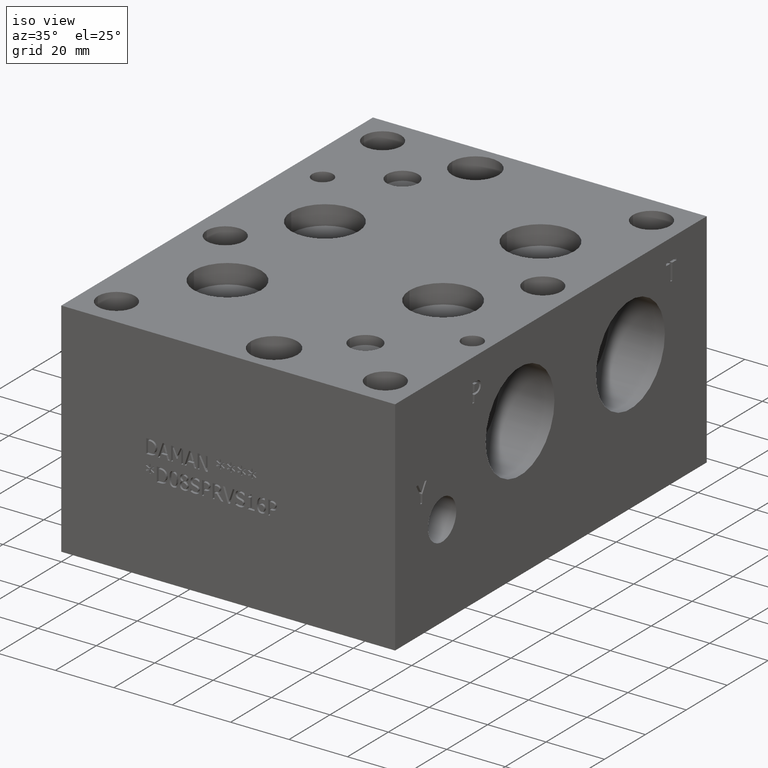
[diagram: clean part render]
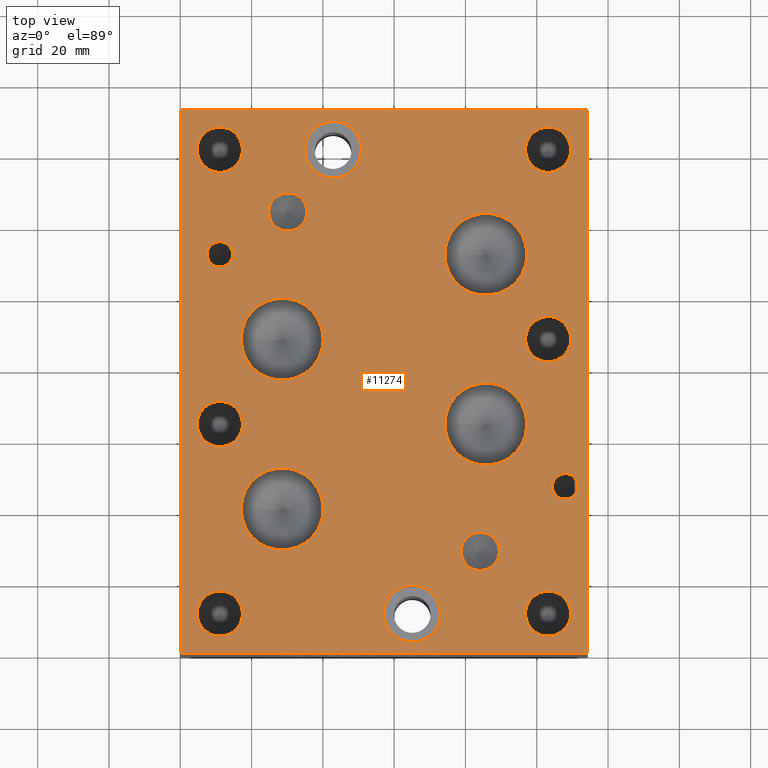
[diagram: tour spotlight — one face highlighted and labeled with its STEP entity id]
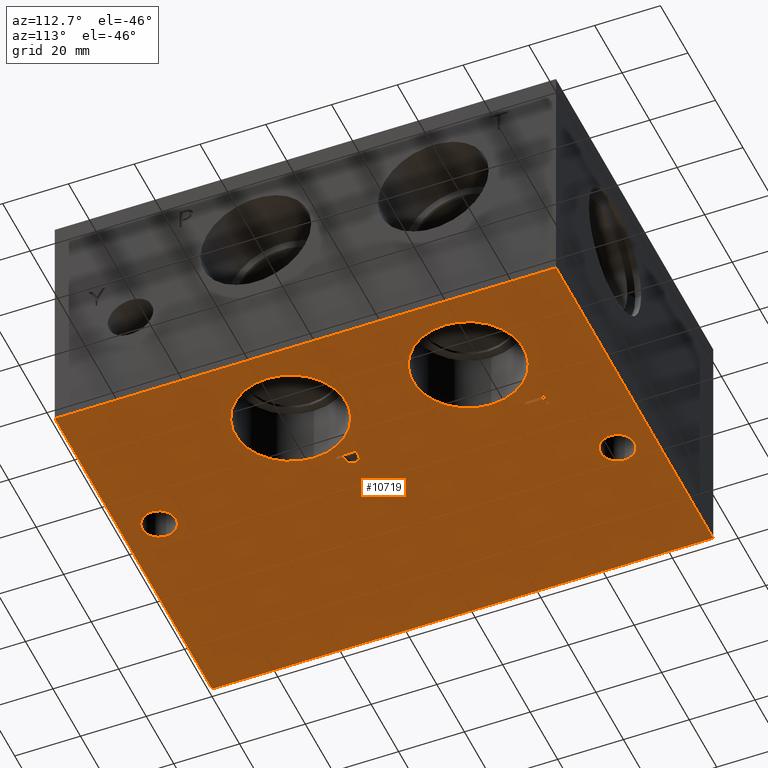
[diagram: tour spotlight — one face highlighted and labeled with its STEP entity id]
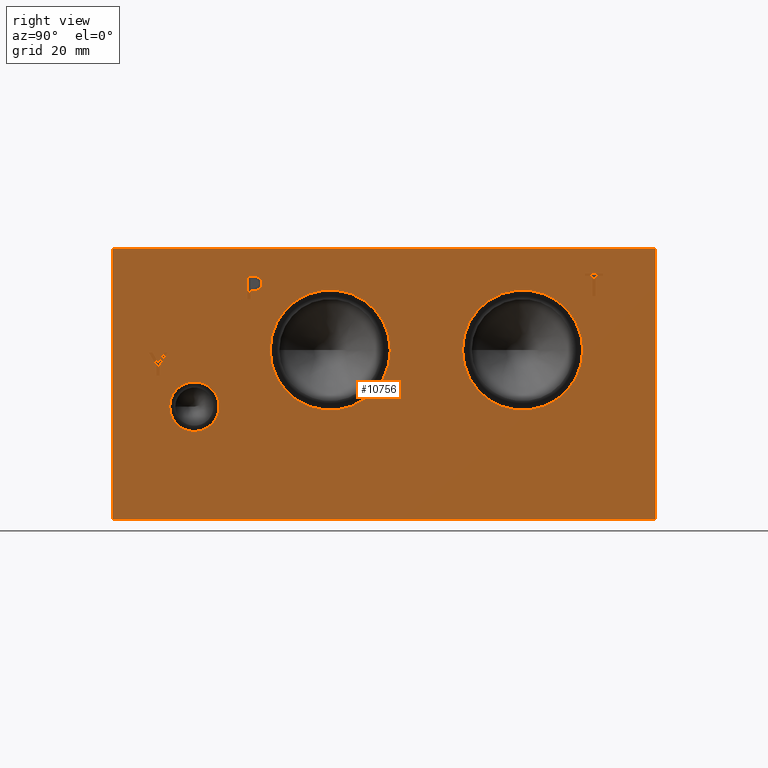
[diagram: tour spotlight — one face highlighted and labeled with its STEP entity id]
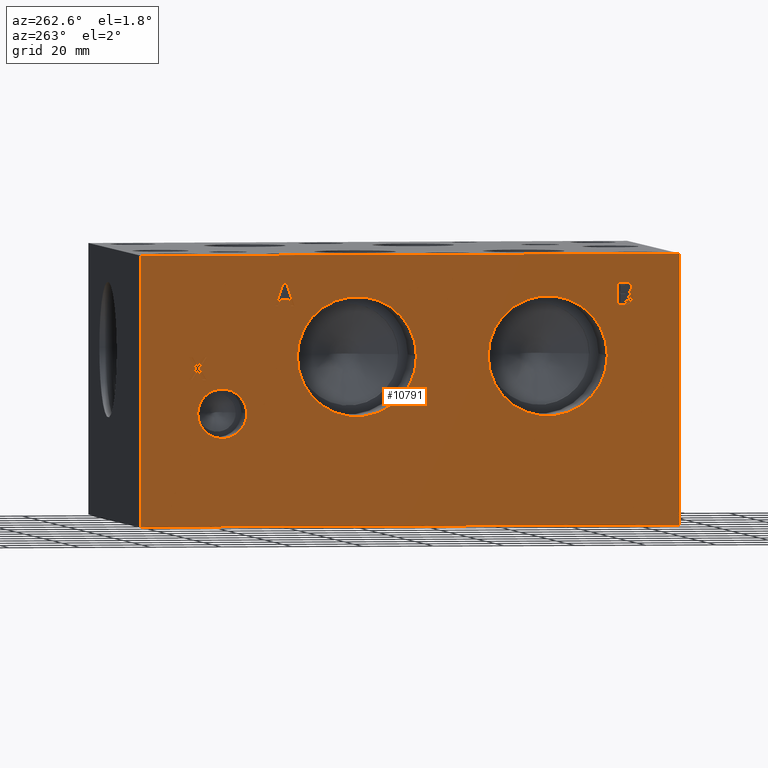
[diagram: tour spotlight — one face highlighted and labeled with its STEP entity id]
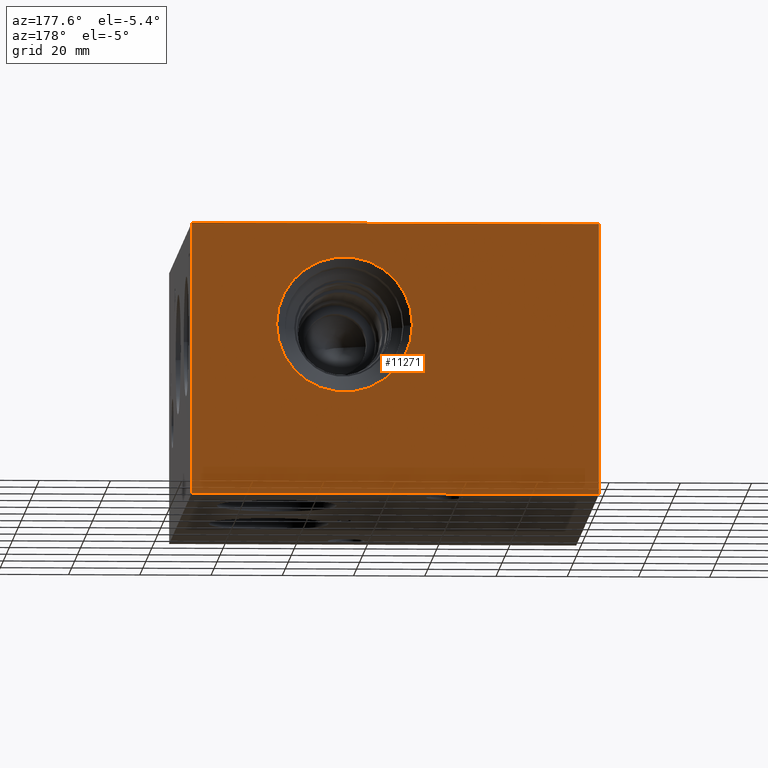
[diagram: tour spotlight — one face highlighted and labeled with its STEP entity id]
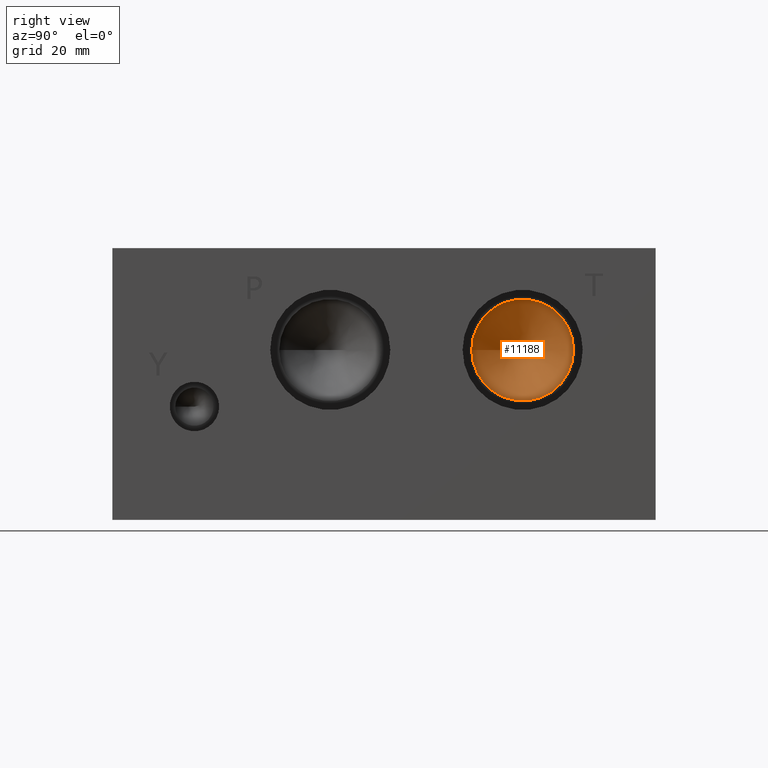
[diagram: tour spotlight — one face highlighted and labeled with its STEP entity id]
A machine part: a face-by-face anatomy tour. The part has 574 B-rep faces; the first image is the clean iso view, then the 6 largest visible faces are spotlighted one at a time (largest first), each with its STEP entity span.

Face 1 — top view, entity #11274. In plain terms, the highlighted planar face has unit normal (0, 0, 1).
Definition (entity closure, byte-faithful):
#182=CIRCLE('',#11755,7.9375);
#183=CIRCLE('',#11756,7.9375);
#187=CIRCLE('',#11763,7.9375);
#188=CIRCLE('',#11764,7.9375);
#191=CIRCLE('',#11770,5.3594);
#192=CIRCLE('',#11771,5.3594);
#195=CIRCLE('',#11776,5.3594);
#196=CIRCLE('',#11777,5.3594);
#199=CIRCLE('',#11782,11.5062);
#200=CIRCLE('',#11783,11.5062);
#203=CIRCLE('',#11788,11.5062);
#204=CIRCLE('',#11789,11.5062);
#207=CIRCLE('',#11794,11.5062);
#208=CIRCLE('',#11795,11.5062);
#211=CIRCLE('',#11800,11.5062);
#212=CIRCLE('',#11801,11.5062);
#215=CIRCLE('',#11806,3.5687);
#216=CIRCLE('',#11807,3.5687);
#219=CIRCLE('',#11812,3.5687);
#220=CIRCLE('',#11813,3.5687);
#226=CIRCLE('',#11822,6.35);
#227=CIRCLE('',#11823,6.35);
#233=CIRCLE('',#11833,6.35);
#234=CIRCLE('',#11834,6.35);
#240=CIRCLE('',#11844,6.35);
#241=CIRCLE('',#11845,6.35);
#247=CIRCLE('',#11855,6.35);
#248=CIRCLE('',#11856,6.35);
#254=CIRCLE('',#11866,6.35);
#255=CIRCLE('',#11867,6.35);
#261=CIRCLE('',#11877,6.35);
#262=CIRCLE('',#11878,6.35);
#338=FACE_BOUND('',#1923,.T.);
#339=FACE_BOUND('',#1924,.T.);
#340=FACE_BOUND('',#1925,.T.);
#341=FACE_BOUND('',#1926,.T.);
#342=FACE_BOUND('',#1927,.T.);
#343=FACE_BOUND('',#1928,.T.);
#344=FACE_BOUND('',#1929,.T.);
#345=FACE_BOUND('',#1930,.T.);
#346=FACE_BOUND('',#1931,.T.);
#347=FACE_BOUND('',#1932,.T.);
#348=FACE_BOUND('',#1933,.T.);
#349=FACE_BOUND('',#1934,.T.);
#350=FACE_BOUND('',#1935,.T.);
#351=FACE_BOUND('',#1936,.T.);
#352=FACE_BOUND('',#1937,.T.);
#353=FACE_BOUND('',#1938,.T.);
#699=PLANE('',#11884);
#1273=FACE_OUTER_BOUND('',#1922,.T.);
#1922=EDGE_LOOP('',(#10048,#10049,#10050,#10051));
#1923=EDGE_LOOP('',(#10052,#10053));
#1924=EDGE_LOOP('',(#10054,#10055));
#1925=EDGE_LOOP('',(#10056,#10057));
#1926=EDGE_LOOP('',(#10058,#10059));
#1927=EDGE_LOOP('',(#10060,#10061));
#1928=EDGE_LOOP('',(#10062,#10063));
#1929=EDGE_LOOP('',(#10064,#10065));
#1930=EDGE_LOOP('',(#10066,#10067));
#1931=EDGE_LOOP('',(#10068,#10069));
#1932=EDGE_LOOP('',(#10070,#10071));
#1933=EDGE_LOOP('',(#10072,#10073));
#1934=EDGE_LOOP('',(#10074,#10075));
#1935=EDGE_LOOP('',(#10076,#10077));
#1936=EDGE_LOOP('',(#10078,#10079));
#1937=EDGE_LOOP('',(#10080,#10081));
#1938=EDGE_LOOP('',(#10082,#10083));
#2060=LINE('',#14682,#3130);
#2131=LINE('',#15076,#3201);
#2556=LINE('',#17891,#3626);
#3009=LINE('',#19307,#4079);
#3130=VECTOR('',#12098,10.);
#3201=VECTOR('',#12223,10.);
#3626=VECTOR('',#12900,10.);
#4079=VECTOR('',#14141,10.);
#4492=VERTEX_POINT('',#14679);
#4493=VERTEX_POINT('',#14681);
#4564=VERTEX_POINT('',#15073);
#4565=VERTEX_POINT('',#15075);
#5352=VERTEX_POINT('',#19047);
#5353=VERTEX_POINT('',#19048);
#5357=VERTEX_POINT('',#19062);
#5358=VERTEX_POINT('',#19063);
#5362=VERTEX_POINT('',#19077);
#5363=VERTEX_POINT('',#19078);
#5367=VERTEX_POINT('',#19090);
#5368=VERTEX_POINT('',#19091);
#5372=VERTEX_POINT('',#19103);
#5373=VERTEX_POINT('',#19104);
#5377=VERTEX_POINT('',#19116);
#5378=VERTEX_POINT('',#19117);
#5382=VERTEX_POINT('',#19129);
#5383=VERTEX_POINT('',#19130);
#5387=VERTEX_POINT('',#19142);
#5388=VERTEX_POINT('',#19143);
#5392=VERTEX_POINT('',#19155);
#5393=VERTEX_POINT('',#19156);
#5397=VERTEX_POINT('',#19168);
#5398=VERTEX_POINT('',#19169);
#5405=VERTEX_POINT('',#19188);
#5406=VERTEX_POINT('',#19189);
#5413=VERTEX_POINT('',#19210);
#5414=VERTEX_POINT('',#19211);
#5421=VERTEX_POINT('',#19232);
#5422=VERTEX_POINT('',#19233);
#5429=VERTEX_POINT('',#19254);
#5430=VERTEX_POINT('',#19255);
#5437=VERTEX_POINT('',#19276);
#5438=VERTEX_POINT('',#19277);
#5445=VERTEX_POINT('',#19298);
#5446=VERTEX_POINT('',#19299);
#5605=EDGE_CURVE('',#4493,#4492,#2060,.T.);
#5710=EDGE_CURVE('',#4565,#4564,#2131,.T.);
#6369=EDGE_CURVE('',#4564,#4493,#2556,.T.);
#6875=EDGE_CURVE('',#5352,#5353,#182,.T.);
#6876=EDGE_CURVE('',#5353,#5352,#183,.T.);
#6882=EDGE_CURVE('',#5357,#5358,#187,.T.);
#6883=EDGE_CURVE('',#5358,#5357,#188,.T.);
#6889=EDGE_CURVE('',#5362,#5363,#191,.T.);
#6890=EDGE_CURVE('',#5363,#5362,#192,.T.);
#6895=EDGE_CURVE('',#5367,#5368,#195,.T.);
#6896=EDGE_CURVE('',#5368,#5367,#196,.T.);
#6901=EDGE_CURVE('',#5372,#5373,#199,.T.);
#6902=EDGE_CURVE('',#5373,#5372,#200,.T.);
#6907=EDGE_CURVE('',#5377,#5378,#203,.T.);
#6908=EDGE_CURVE('',#5378,#5377,#204,.T.);
#6913=EDGE_CURVE('',#5382,#5383,#207,.T.);
#6914=EDGE_CURVE('',#5383,#5382,#208,.T.);
#6919=EDGE_CURVE('',#5387,#5388,#211,.T.);
#6920=EDGE_CURVE('',#5388,#5387,#212,.T.);
#6925=EDGE_CURVE('',#5392,#5393,#215,.T.);
#6926=EDGE_CURVE('',#5393,#5392,#216,.T.);
#6931=EDGE_CURVE('',#5397,#5398,#219,.T.);
#6932=EDGE_CURVE('',#5398,#5397,#220,.T.);
#6940=EDGE_CURVE('',#5405,#5406,#226,.T.);
#6941=EDGE_CURVE('',#5406,#5405,#227,.T.);
#6950=EDGE_CURVE('',#5413,#5414,#233,.T.);
#6951=EDGE_CURVE('',#5414,#5413,#234,.T.);
#6960=EDGE_CURVE('',#5421,#5422,#240,.T.);
#6961=EDGE_CURVE('',#5422,#5421,#241,.T.);
#6970=EDGE_CURVE('',#5429,#5430,#247,.T.);
#6971=EDGE_CURVE('',#5430,#5429,#248,.T.);
#6980=EDGE_CURVE('',#5437,#5438,#254,.T.);
#6981=EDGE_CURVE('',#5438,#5437,#255,.T.);
#6990=EDGE_CURVE('',#5445,#5446,#261,.T.);
#6991=EDGE_CURVE('',#5446,#5445,#262,.T.);
#6994=EDGE_CURVE('',#4492,#4565,#3009,.T.);
#10048=ORIENTED_EDGE('',*,*,#6369,.T.);
#10049=ORIENTED_EDGE('',*,*,#5605,.T.);
#10050=ORIENTED_EDGE('',*,*,#6994,.T.);
#10051=ORIENTED_EDGE('',*,*,#5710,.T.);
#10052=ORIENTED_EDGE('',*,*,#6875,.T.);
#10053=ORIENTED_EDGE('',*,*,#6876,.T.);
#10054=ORIENTED_EDGE('',*,*,#6882,.T.);
#10055=ORIENTED_EDGE('',*,*,#6883,.T.);
#10056=ORIENTED_EDGE('',*,*,#6889,.T.);
#10057=ORIENTED_EDGE('',*,*,#6890,.T.);
#10058=ORIENTED_EDGE('',*,*,#6895,.T.);
#10059=ORIENTED_EDGE('',*,*,#6896,.T.);
#10060=ORIENTED_EDGE('',*,*,#6901,.T.);
#10061=ORIENTED_EDGE('',*,*,#6902,.T.);
#10062=ORIENTED_EDGE('',*,*,#6907,.T.);
#10063=ORIENTED_EDGE('',*,*,#6908,.T.);
#10064=ORIENTED_EDGE('',*,*,#6913,.T.);
#10065=ORIENTED_EDGE('',*,*,#6914,.T.);
#10066=ORIENTED_EDGE('',*,*,#6919,.T.);
#10067=ORIENTED_EDGE('',*,*,#6920,.T.);
#10068=ORIENTED_EDGE('',*,*,#6925,.T.);
#10069=ORIENTED_EDGE('',*,*,#6926,.T.);
#10070=ORIENTED_EDGE('',*,*,#6931,.T.);
#10071=ORIENTED_EDGE('',*,*,#6932,.T.);
#10072=ORIENTED_EDGE('',*,*,#6940,.T.);
#10073=ORIENTED_EDGE('',*,*,#6941,.T.);
#10074=ORIENTED_EDGE('',*,*,#6950,.T.);
#10075=ORIENTED_EDGE('',*,*,#6951,.T.);
#10076=ORIENTED_EDGE('',*,*,#6960,.T.);
#10077=ORIENTED_EDGE('',*,*,#6961,.T.);
#10078=ORIENTED_EDGE('',*,*,#6970,.T.);
#10079=ORIENTED_EDGE('',*,*,#6971,.T.);
#10080=ORIENTED_EDGE('',*,*,#6980,.T.);
#10081=ORIENTED_EDGE('',*,*,#6981,.T.);
#10082=ORIENTED_EDGE('',*,*,#6990,.T.);
#10083=ORIENTED_EDGE('',*,*,#6991,.T.);
#11274=ADVANCED_FACE('',(#1273,#338,#339,#340,#341,#342,#343,#344,#345,
#346,#347,#348,#349,#350,#351,#352,#353),#699,.T.);
#11755=AXIS2_PLACEMENT_3D('',#19049,#13849,#13850);
#11756=AXIS2_PLACEMENT_3D('',#19050,#13851,#13852);
#11763=AXIS2_PLACEMENT_3D('',#19064,#13867,#13868);
#11764=AXIS2_PLACEMENT_3D('',#19065,#13869,#13870);
#11770=AXIS2_PLACEMENT_3D('',#19079,#13884,#13885);
#11771=AXIS2_PLACEMENT_3D('',#19080,#13886,#13887);
#11776=AXIS2_PLACEMENT_3D('',#19092,#13898,#13899);
#11777=AXIS2_PLACEMENT_3D('',#19093,#13900,#13901);
#11782=AXIS2_PLACEMENT_3D('',#19105,#13912,#13913);
#11783=AXIS2_PLACEMENT_3D('',#19106,#13914,#13915);
#11788=AXIS2_PLACEMENT_3D('',#19118,#13926,#13927);
#11789=AXIS2_PLACEMENT_3D('',#19119,#13928,#13929);
#11794=AXIS2_PLACEMENT_3D('',#19131,#13940,#13941);
#11795=AXIS2_PLACEMENT_3D('',#19132,#13942,#13943);
#11800=AXIS2_PLACEMENT_3D('',#19144,#13954,#13955);
#11801=AXIS2_PLACEMENT_3D('',#19145,#13956,#13957);
#11806=AXIS2_PLACEMENT_3D('',#19157,#13968,#13969);
#11807=AXIS2_PLACEMENT_3D('',#19158,#13970,#13971);
#11812=AXIS2_PLACEMENT_3D('',#19170,#13982,#13983);
#11813=AXIS2_PLACEMENT_3D('',#19171,#13984,#13985);
#11822=AXIS2_PLACEMENT_3D('',#19190,#14004,#14005);
#11823=AXIS2_PLACEMENT_3D('',#19191,#14006,#14007);
#11833=AXIS2_PLACEMENT_3D('',#19212,#14029,#14030);
#11834=AXIS2_PLACEMENT_3D('',#19213,#14031,#14032);
#11844=AXIS2_PLACEMENT_3D('',#19234,#14054,#14055);
#11845=AXIS2_PLACEMENT_3D('',#19235,#14056,#14057);
#11855=AXIS2_PLACEMENT_3D('',#19256,#14079,#14080);
#11856=AXIS2_PLACEMENT_3D('',#19257,#14081,#14082);
#11866=AXIS2_PLACEMENT_3D('',#19278,#14104,#14105);
#11867=AXIS2_PLACEMENT_3D('',#19279,#14106,#14107);
#11877=AXIS2_PLACEMENT_3D('',#19300,#14129,#14130);
#11878=AXIS2_PLACEMENT_3D('',#19301,#14131,#14132);
#11884=AXIS2_PLACEMENT_3D('',#19310,#14146,#14147);
#12098=DIRECTION('',(0.,1.,0.));
#12223=DIRECTION('',(0.,-1.,0.));
#12900=DIRECTION('',(1.,0.,0.));
#13849=DIRECTION('center_axis',(0.,0.,-1.));
#13850=DIRECTION('ref_axis',(1.,0.,0.));
#13851=DIRECTION('center_axis',(0.,0.,-1.));
#13852=DIRECTION('ref_axis',(1.,0.,0.));
#13867=DIRECTION('center_axis',(0.,0.,-1.));
#13868=DIRECTION('ref_axis',(1.,0.,0.));
#13869=DIRECTION('center_axis',(0.,0.,-1.));
#13870=DIRECTION('ref_axis',(1.,0.,0.));
#13884=DIRECTION('center_axis',(0.,0.,-1.));
#13885=DIRECTION('ref_axis',(1.,0.,0.));
#13886=DIRECTION('center_axis',(0.,0.,-1.));
#13887=DIRECTION('ref_axis',(1.,0.,0.));
#13898=DIRECTION('center_axis',(0.,0.,-1.));
#13899=DIRECTION('ref_axis',(1.,0.,0.));
#13900=DIRECTION('center_axis',(0.,0.,-1.));
#13901=DIRECTION('ref_axis',(1.,0.,0.));
#13912=DIRECTION('center_axis',(0.,0.,-1.));
#13913=DIRECTION('ref_axis',(1.,0.,0.));
#13914=DIRECTION('center_axis',(0.,0.,-1.));
#13915=DIRECTION('ref_axis',(1.,0.,0.));
#13926=DIRECTION('center_axis',(0.,0.,-1.));
#13927=DIRECTION('ref_axis',(1.,0.,0.));
#13928=DIRECTION('center_axis',(0.,0.,-1.));
#13929=DIRECTION('ref_axis',(1.,0.,0.));
#13940=DIRECTION('center_axis',(0.,0.,-1.));
#13941=DIRECTION('ref_axis',(1.,0.,0.));
#13942=DIRECTION('center_axis',(0.,0.,-1.));
#13943=DIRECTION('ref_axis',(1.,0.,0.));
#13954=DIRECTION('center_axis',(0.,0.,-1.));
#13955=DIRECTION('ref_axis',(1.,0.,0.));
#13956=DIRECTION('center_axis',(0.,0.,-1.));
#13957=DIRECTION('ref_axis',(1.,0.,0.));
#13968=DIRECTION('center_axis',(0.,0.,-1.));
#13969=DIRECTION('ref_axis',(1.,0.,0.));
#13970=DIRECTION('center_axis',(0.,0.,-1.));
#13971=DIRECTION('ref_axis',(1.,0.,0.));
#13982=DIRECTION('center_axis',(0.,0.,-1.));
#13983=DIRECTION('ref_axis',(1.,0.,0.));
#13984=DIRECTION('center_axis',(0.,0.,-1.));
#13985=DIRECTION('ref_axis',(1.,0.,0.));
#14004=DIRECTION('center_axis',(0.,0.,-1.));
#14005=DIRECTION('ref_axis',(1.,0.,0.));
#14006=DIRECTION('center_axis',(0.,0.,-1.));
#14007=DIRECTION('ref_axis',(1.,0.,0.));
#14029=DIRECTION('center_axis',(0.,0.,-1.));
#14030=DIRECTION('ref_axis',(1.,0.,0.));
#14031=DIRECTION('center_axis',(0.,0.,-1.));
#14032=DIRECTION('ref_axis',(1.,0.,0.));
#14054=DIRECTION('center_axis',(0.,0.,-1.));
#14055=DIRECTION('ref_axis',(1.,0.,0.));
#14056=DIRECTION('center_axis',(0.,0.,-1.));
#14057=DIRECTION('ref_axis',(1.,0.,0.));
#14079=DIRECTION('center_axis',(0.,0.,-1.));
#14080=DIRECTION('ref_axis',(1.,0.,0.));
#14081=DIRECTION('center_axis',(0.,0.,-1.));
#14082=DIRECTION('ref_axis',(1.,0.,0.));
#14104=DIRECTION('center_axis',(0.,0.,-1.));
#14105=DIRECTION('ref_axis',(1.,0.,0.));
#14106=DIRECTION('center_axis',(0.,0.,-1.));
#14107=DIRECTION('ref_axis',(1.,0.,0.));
#14129=DIRECTION('center_axis',(0.,0.,-1.));
#14130=DIRECTION('ref_axis',(1.,0.,0.));
#14131=DIRECTION('center_axis',(0.,0.,-1.));
#14132=DIRECTION('ref_axis',(1.,0.,0.));
#14141=DIRECTION('',(-1.,0.,0.));
#14146=DIRECTION('center_axis',(0.,0.,1.));
#14147=DIRECTION('ref_axis',(1.,0.,0.));
#14679=CARTESIAN_POINT('',(114.3,152.4,76.2));
#14681=CARTESIAN_POINT('',(114.3,0.,76.2));
#14682=CARTESIAN_POINT('',(114.3,0.,76.2));
#15073=CARTESIAN_POINT('',(0.,0.,76.2));
#15075=CARTESIAN_POINT('',(0.,152.4,76.2));
#15076=CARTESIAN_POINT('',(0.,152.4,76.2));
#17891=CARTESIAN_POINT('',(0.,0.,76.2));
#19047=CARTESIAN_POINT('',(50.8127,141.2748,76.2));
#19048=CARTESIAN_POINT('',(34.9377,141.2748,76.2));
#19049=CARTESIAN_POINT('Origin',(42.8752,141.2748,76.2));
#19050=CARTESIAN_POINT('Origin',(42.8752,141.2748,76.2));
#19062=CARTESIAN_POINT('',(73.0123,11.1252,76.2));
#19063=CARTESIAN_POINT('',(57.1373,11.1252,76.2));
#19064=CARTESIAN_POINT('Origin',(65.0748,11.1252,76.2));
#19065=CARTESIAN_POINT('Origin',(65.0748,11.1252,76.2));
#19077=CARTESIAN_POINT('',(35.5219,123.81992,76.2));
#19078=CARTESIAN_POINT('',(24.8031,123.81992,76.2));
#19079=CARTESIAN_POINT('Origin',(30.1625,123.81992,76.2));
#19080=CARTESIAN_POINT('Origin',(30.1625,123.81992,76.2));
#19090=CARTESIAN_POINT('',(89.4969,28.56992,76.2));
#19091=CARTESIAN_POINT('',(78.7781,28.56992,76.2));
#19092=CARTESIAN_POINT('Origin',(84.1375,28.56992,76.2));
#19093=CARTESIAN_POINT('Origin',(84.1375,28.56992,76.2));
#19103=CARTESIAN_POINT('',(40.0812,88.1126,76.2));
#19104=CARTESIAN_POINT('',(17.0688,88.1126,76.2));
#19105=CARTESIAN_POINT('Origin',(28.575,88.1126,76.2));
#19106=CARTESIAN_POINT('Origin',(28.575,88.1126,76.2));
#19116=CARTESIAN_POINT('',(97.2312,64.2874,76.2));
#19117=CARTESIAN_POINT('',(74.2188,64.2874,76.2));
#19118=CARTESIAN_POINT('Origin',(85.725,64.2874,76.2));
#19119=CARTESIAN_POINT('Origin',(85.725,64.2874,76.2));
#19129=CARTESIAN_POINT('',(97.2312,111.9124,76.2));
#19130=CARTESIAN_POINT('',(74.2188,111.9124,76.2));
#19131=CARTESIAN_POINT('Origin',(85.725,111.9124,76.2));
#19132=CARTESIAN_POINT('Origin',(85.725,111.9124,76.2));
#19142=CARTESIAN_POINT('',(40.0812,40.4622,76.2));
#19143=CARTESIAN_POINT('',(17.0688,40.4622,76.2));
#19144=CARTESIAN_POINT('Origin',(28.575,40.4622,76.2));
#19145=CARTESIAN_POINT('Origin',(28.575,40.4622,76.2));
#19155=CARTESIAN_POINT('',(14.6685,111.9124,76.2));
#19156=CARTESIAN_POINT('',(7.5311,111.9124,76.2));
#19157=CARTESIAN_POINT('Origin',(11.0998,111.9124,76.2));
#19158=CARTESIAN_POINT('Origin',(11.0998,111.9124,76.2));
#19168=CARTESIAN_POINT('',(111.5187,46.8376,76.2));
#19169=CARTESIAN_POINT('',(104.3813,46.8376,76.2));
#19170=CARTESIAN_POINT('Origin',(107.95,46.8376,76.2));
#19171=CARTESIAN_POINT('Origin',(107.95,46.8376,76.2));
#19188=CARTESIAN_POINT('',(17.4625,11.10742,76.2));
#19189=CARTESIAN_POINT('',(4.7625,11.10742,76.2));
#19190=CARTESIAN_POINT('Origin',(11.1125,11.10742,76.2));
#19191=CARTESIAN_POINT('Origin',(11.1125,11.10742,76.2));
#19210=CARTESIAN_POINT('',(109.5502,88.0999,76.2));
#19211=CARTESIAN_POINT('',(96.8502,88.0999,76.2));
#19212=CARTESIAN_POINT('Origin',(103.2002,88.0999,76.2));
#19213=CARTESIAN_POINT('Origin',(103.2002,88.0999,76.2));
#19232=CARTESIAN_POINT('',(17.4498,141.2748,76.2));
#19233=CARTESIAN_POINT('',(4.7498,141.2748,76.2));
#19234=CARTESIAN_POINT('Origin',(11.0998,141.2748,76.2));
#19235=CARTESIAN_POINT('Origin',(11.0998,141.2748,76.2));
#19254=CARTESIAN_POINT('',(109.5375,141.27988,76.2));
#19255=CARTESIAN_POINT('',(96.8375,141.27988,76.2));
#19256=CARTESIAN_POINT('Origin',(103.1875,141.27988,76.2));
#19257=CARTESIAN_POINT('Origin',(103.1875,141.27988,76.2));
#19276=CARTESIAN_POINT('',(109.5375,11.10742,76.2));
#19277=CARTESIAN_POINT('',(96.8375,11.10742,76.2));
#19278=CARTESIAN_POINT('Origin',(103.1875,11.10742,76.2));
#19279=CARTESIAN_POINT('Origin',(103.1875,11.10742,76.2));
#19298=CARTESIAN_POINT('',(17.4752,64.2874,76.2));
#19299=CARTESIAN_POINT('',(4.7752,64.2874,76.2));
#19300=CARTESIAN_POINT('Origin',(11.1252,64.2874,76.2));
#19301=CARTESIAN_POINT('Origin',(11.1252,64.2874,76.2));
#19307=CARTESIAN_POINT('',(114.3,152.4,76.2));
#19310=CARTESIAN_POINT('Origin',(57.15,76.2,76.2));

Face 2 — auxiliary view, entity #10719. In plain terms, the highlighted planar face has unit normal (0, 0, 1).
Definition (entity closure, byte-faithful):
#89=CIRCLE('',#11300,5.1562);
#90=CIRCLE('',#11301,5.1562);
#91=CIRCLE('',#11302,16.8529);
#92=CIRCLE('',#11303,16.8529);
#93=CIRCLE('',#11304,16.8529);
#94=CIRCLE('',#11305,16.8529);
#264=FACE_BOUND('',#1294,.T.);
#265=FACE_BOUND('',#1295,.T.);
#266=FACE_BOUND('',#1296,.T.);
#267=FACE_BOUND('',#1297,.T.);
#268=FACE_BOUND('',#1298,.T.);
#269=FACE_BOUND('',#1299,.T.);
#363=PLANE('',#11299);
#718=FACE_OUTER_BOUND('',#1293,.T.);
#1293=EDGE_LOOP('',(#7075,#7076,#7077,#7078));
#1294=EDGE_LOOP('',(#7079));
#1295=EDGE_LOOP('',(#7080));
#1296=EDGE_LOOP('',(#7081,#7082));
#1297=EDGE_LOOP('',(#7083,#7084));
#1298=EDGE_LOOP('',(#7085,#7086,#7087,#7088,#7089,#7090,#7091,#7092));
#1299=EDGE_LOOP('',(#7093,#7094,#7095,#7096,#7097,#7098,#7099,#7100,#7101));
#1956=LINE('',#14288,#3026);
#1959=LINE('',#14294,#3029);
#1962=LINE('',#14300,#3032);
#1965=LINE('',#14306,#3035);
#1968=LINE('',#14312,#3038);
#1972=LINE('',#14355,#3042);
#1973=LINE('',#14357,#3043);
#1974=LINE('',#14359,#3044);
#1975=LINE('',#14360,#3045);
#1976=LINE('',#14375,#3046);
#1977=LINE('',#14377,#3047);
#1978=LINE('',#14379,#3048);
#1979=LINE('',#14381,#3049);
#1980=LINE('',#14383,#3050);
#1981=LINE('',#14385,#3051);
#1982=LINE('',#14387,#3052);
#1983=LINE('',#14388,#3053);
#3026=VECTOR('',#11912,10.);
#3029=VECTOR('',#11917,10.);
#3032=VECTOR('',#11922,10.);
#3035=VECTOR('',#11927,10.);
#3038=VECTOR('',#11932,10.);
#3042=VECTOR('',#11940,10.);
#3043=VECTOR('',#11941,10.);
#3044=VECTOR('',#11942,10.);
#3045=VECTOR('',#11943,10.);
#3046=VECTOR('',#11956,10.);
#3047=VECTOR('',#11957,10.);
#3048=VECTOR('',#11958,10.);
#3049=VECTOR('',#11959,10.);
#3050=VECTOR('',#11960,10.);
#3051=VECTOR('',#11961,10.);
#3052=VECTOR('',#11962,10.);
#3053=VECTOR('',#11963,10.);
#4088=B_SPLINE_CURVE_WITH_KNOTS('',2,(#14255,#14256,#14257,#14258),
 .UNSPECIFIED.,.F.,.F.,(3,1,3),(0.,1.,2.),.UNSPECIFIED.);
#4090=B_SPLINE_CURVE_WITH_KNOTS('',2,(#14276,#14277,#14278,#14279),
 .UNSPECIFIED.,.F.,.F.,(3,1,3),(0.,1.,2.),.UNSPECIFIED.);
#4092=B_SPLINE_CURVE_WITH_KNOTS('',2,(#14325,#14326,#14327,#14328),
 .UNSPECIFIED.,.F.,.F.,(3,1,3),(0.,1.,2.),.UNSPECIFIED.);
#4094=B_SPLINE_CURVE_WITH_KNOTS('',2,(#14343,#14344,#14345,#14346),
 .UNSPECIFIED.,.F.,.F.,(3,1,3),(0.,1.,2.),.UNSPECIFIED.);
#4398=VERTEX_POINT('',#14253);
#4399=VERTEX_POINT('',#14254);
#4402=VERTEX_POINT('',#14275);
#4404=VERTEX_POINT('',#14287);
#4406=VERTEX_POINT('',#14293);
#4408=VERTEX_POINT('',#14299);
#4410=VERTEX_POINT('',#14305);
#4412=VERTEX_POINT('',#14311);
#4414=VERTEX_POINT('',#14324);
#4416=VERTEX_POINT('',#14353);
#4417=VERTEX_POINT('',#14354);
#4418=VERTEX_POINT('',#14356);
#4419=VERTEX_POINT('',#14358);
#4420=VERTEX_POINT('',#14361);
#4421=VERTEX_POINT('',#14363);
#4422=VERTEX_POINT('',#14365);
#4423=VERTEX_POINT('',#14366);
#4424=VERTEX_POINT('',#14369);
#4425=VERTEX_POINT('',#14370);
#4426=VERTEX_POINT('',#14373);
#4427=VERTEX_POINT('',#14374);
#4428=VERTEX_POINT('',#14376);
#4429=VERTEX_POINT('',#14378);
#4430=VERTEX_POINT('',#14380);
#4431=VERTEX_POINT('',#14382);
#4432=VERTEX_POINT('',#14384);
#4433=VERTEX_POINT('',#14386);
#5468=EDGE_CURVE('',#4398,#4399,#4088,.T.);
#5472=EDGE_CURVE('',#4402,#4398,#4090,.T.);
#5475=EDGE_CURVE('',#4404,#4402,#1956,.T.);
#5478=EDGE_CURVE('',#4406,#4404,#1959,.T.);
#5481=EDGE_CURVE('',#4408,#4406,#1962,.T.);
#5484=EDGE_CURVE('',#4410,#4408,#1965,.T.);
#5487=EDGE_CURVE('',#4412,#4410,#1968,.T.);
#5490=EDGE_CURVE('',#4414,#4412,#4092,.T.);
#5493=EDGE_CURVE('',#4399,#4414,#4094,.T.);
#5495=EDGE_CURVE('',#4416,#4417,#1972,.T.);
#5496=EDGE_CURVE('',#4418,#4416,#1973,.T.);
#5497=EDGE_CURVE('',#4419,#4418,#1974,.T.);
#5498=EDGE_CURVE('',#4417,#4419,#1975,.T.);
#5499=EDGE_CURVE('',#4420,#4420,#89,.T.);
#5500=EDGE_CURVE('',#4421,#4421,#90,.T.);
#5501=EDGE_CURVE('',#4422,#4423,#91,.T.);
#5502=EDGE_CURVE('',#4423,#4422,#92,.T.);
#5503=EDGE_CURVE('',#4424,#4425,#93,.T.);
#5504=EDGE_CURVE('',#4425,#4424,#94,.T.);
#5505=EDGE_CURVE('',#4426,#4427,#1976,.T.);
#5506=EDGE_CURVE('',#4427,#4428,#1977,.T.);
#5507=EDGE_CURVE('',#4428,#4429,#1978,.T.);
#5508=EDGE_CURVE('',#4429,#4430,#1979,.T.);
#5509=EDGE_CURVE('',#4430,#4431,#1980,.T.);
#5510=EDGE_CURVE('',#4431,#4432,#1981,.T.);
#5511=EDGE_CURVE('',#4432,#4433,#1982,.T.);
#5512=EDGE_CURVE('',#4433,#4426,#1983,.T.);
#7075=ORIENTED_EDGE('',*,*,#5495,.F.);
#7076=ORIENTED_EDGE('',*,*,#5496,.F.);
#7077=ORIENTED_EDGE('',*,*,#5497,.F.);
#7078=ORIENTED_EDGE('',*,*,#5498,.F.);
#7079=ORIENTED_EDGE('',*,*,#5499,.T.);
#7080=ORIENTED_EDGE('',*,*,#5500,.T.);
#7081=ORIENTED_EDGE('',*,*,#5501,.T.);
#7082=ORIENTED_EDGE('',*,*,#5502,.T.);
#7083=ORIENTED_EDGE('',*,*,#5503,.T.);
#7084=ORIENTED_EDGE('',*,*,#5504,.T.);
#7085=ORIENTED_EDGE('',*,*,#5505,.T.);
#7086=ORIENTED_EDGE('',*,*,#5506,.T.);
#7087=ORIENTED_EDGE('',*,*,#5507,.T.);
#7088=ORIENTED_EDGE('',*,*,#5508,.T.);
#7089=ORIENTED_EDGE('',*,*,#5509,.T.);
#7090=ORIENTED_EDGE('',*,*,#5510,.T.);
#7091=ORIENTED_EDGE('',*,*,#5511,.T.);
#7092=ORIENTED_EDGE('',*,*,#5512,.T.);
#7093=ORIENTED_EDGE('',*,*,#5468,.T.);
#7094=ORIENTED_EDGE('',*,*,#5493,.T.);
#7095=ORIENTED_EDGE('',*,*,#5490,.T.);
#7096=ORIENTED_EDGE('',*,*,#5487,.T.);
#7097=ORIENTED_EDGE('',*,*,#5484,.T.);
#7098=ORIENTED_EDGE('',*,*,#5481,.T.);
#7099=ORIENTED_EDGE('',*,*,#5478,.T.);
#7100=ORIENTED_EDGE('',*,*,#5475,.T.);
#7101=ORIENTED_EDGE('',*,*,#5472,.T.);
#10719=ADVANCED_FACE('',(#718,#264,#265,#266,#267,#268,#269),#363,.F.);
#11299=AXIS2_PLACEMENT_3D('',#14352,#11938,#11939);
#11300=AXIS2_PLACEMENT_3D('',#14362,#11944,#11945);
#11301=AXIS2_PLACEMENT_3D('',#14364,#11946,#11947);
#11302=AXIS2_PLACEMENT_3D('',#14367,#11948,#11949);
#11303=AXIS2_PLACEMENT_3D('',#14368,#11950,#11951);
#11304=AXIS2_PLACEMENT_3D('',#14371,#11952,#11953);
#11305=AXIS2_PLACEMENT_3D('',#14372,#11954,#11955);
#11912=DIRECTION('',(-1.,0.,0.));
#11917=DIRECTION('',(-2.79741238752512E-15,1.,0.));
#11922=DIRECTION('',(1.,0.,0.));
#11927=DIRECTION('',(3.75218139805001E-15,-1.,0.));
#11932=DIRECTION('',(1.,0.,0.));
#11938=DIRECTION('center_axis',(0.,0.,1.));
#11939=DIRECTION('ref_axis',(1.,0.,0.));
#11940=DIRECTION('',(1.,0.,0.));
#11941=DIRECTION('',(0.,-1.,0.));
#11942=DIRECTION('',(-1.,0.,0.));
#11943=DIRECTION('',(0.,1.,0.));
#11944=DIRECTION('center_axis',(0.,0.,1.));
#11945=DIRECTION('ref_axis',(1.,0.,0.));
#11946=DIRECTION('center_axis',(0.,0.,1.));
#11947=DIRECTION('ref_axis',(1.,0.,0.));
#11948=DIRECTION('center_axis',(0.,0.,1.));
#11949=DIRECTION('ref_axis',(1.,0.,0.));
#11950=DIRECTION('center_axis',(0.,0.,1.));
#11951=DIRECTION('ref_axis',(1.,0.,0.));
#11952=DIRECTION('center_axis',(0.,0.,1.));
#11953=DIRECTION('ref_axis',(1.,0.,0.));
#11954=DIRECTION('center_axis',(0.,0.,1.));
#11955=DIRECTION('ref_axis',(1.,0.,0.));
#11956=DIRECTION('',(1.,0.,0.));
#11957=DIRECTION('',(-3.17280044688052E-15,1.,0.));
#11958=DIRECTION('',(1.,0.,0.));
#11959=DIRECTION('',(-1.18219413911163E-14,1.,0.));
#11960=DIRECTION('',(-1.,-3.47984565141734E-15,0.));
#11961=DIRECTION('',(1.18219413911166E-14,-1.,0.));
#11962=DIRECTION('',(1.,0.,0.));
#11963=DIRECTION('',(3.17280044688052E-15,-1.,0.));
#14253=CARTESIAN_POINT('',(66.7431827976406,72.6287681439707,0.));
#14254=CARTESIAN_POINT('',(65.986740345468,71.1107373726039,0.));
#14255=CARTESIAN_POINT('Ctrl Pts',(66.7431827976406,72.6287681439707,0.));
#14256=CARTESIAN_POINT('Ctrl Pts',(66.3881179731514,72.3869123939564,0.));
#14257=CARTESIAN_POINT('Ctrl Pts',(65.986740345468,71.6407616758269,0.));
#14258=CARTESIAN_POINT('Ctrl Pts',(65.986740345468,71.1107373726039,0.));
#14275=CARTESIAN_POINT('',(68.4052978456117,73.0249999046326,0.));
#14276=CARTESIAN_POINT('Ctrl Pts',(68.4052978456117,73.0249999046326,0.));
#14277=CARTESIAN_POINT('Ctrl Pts',(67.8392524732376,73.0249999046326,0.));
#14278=CARTESIAN_POINT('Ctrl Pts',(67.046788951914,72.8397486918556,0.));
#14279=CARTESIAN_POINT('Ctrl Pts',(66.7431827976406,72.6287681439707,0.));
#14287=CARTESIAN_POINT('',(70.0005166223022,73.0249999046326,0.));
#14288=CARTESIAN_POINT('',(63.5752583111511,73.0249999046326,0.));
#14293=CARTESIAN_POINT('',(70.0005166223022,66.675,0.));
#14294=CARTESIAN_POINT('',(70.0005166223022,71.4375,0.));
#14299=CARTESIAN_POINT('',(69.1565944307627,66.675,0.));
#14300=CARTESIAN_POINT('',(63.1532972153814,66.675,0.));
#14305=CARTESIAN_POINT('',(69.1565944307627,69.0420988299279,0.));
#14306=CARTESIAN_POINT('',(69.1565944307627,72.621049414964,0.));
#14311=CARTESIAN_POINT('',(68.4413189147628,69.0420988299279,0.));
#14312=CARTESIAN_POINT('',(62.7956594573814,69.0420988299279,0.));
#14324=CARTESIAN_POINT('',(66.5424939837989,69.7007698086904,0.));
#14325=CARTESIAN_POINT('Ctrl Pts',(66.5424939837989,69.7007698086904,0.));
#14326=CARTESIAN_POINT('Ctrl Pts',(66.8718294731802,69.3765801863307,0.));
#14327=CARTESIAN_POINT('Ctrl Pts',(67.7620644679139,69.0420988299279,0.));
#14328=CARTESIAN_POINT('Ctrl Pts',(68.4413189147628,69.0420988299279,0.));
#14343=CARTESIAN_POINT('Ctrl Pts',(65.986740345468,71.1107373726039,0.));
#14344=CARTESIAN_POINT('Ctrl Pts',(65.986740345468,70.6990680108773,0.));
#14345=CARTESIAN_POINT('Ctrl Pts',(66.2800547656982,69.9580631597695,0.));
#14346=CARTESIAN_POINT('Ctrl Pts',(66.5424939837989,69.7007698086904,0.));
#14352=CARTESIAN_POINT('Origin',(57.15,76.2,0.));
#14353=CARTESIAN_POINT('',(0.,0.,0.));
#14354=CARTESIAN_POINT('',(114.3,0.,0.));
#14355=CARTESIAN_POINT('',(0.,0.,0.));
#14356=CARTESIAN_POINT('',(0.,152.4,0.));
#14357=CARTESIAN_POINT('',(0.,152.4,0.));
#14358=CARTESIAN_POINT('',(114.3,152.4,0.));
#14359=CARTESIAN_POINT('',(114.3,152.4,0.));
#14360=CARTESIAN_POINT('',(114.3,0.,0.));
#14361=CARTESIAN_POINT('',(59.9186,11.1252,0.));
#14362=CARTESIAN_POINT('Origin',(65.0748,11.1252,0.));
#14363=CARTESIAN_POINT('',(37.719,141.2748,0.));
#14364=CARTESIAN_POINT('Origin',(42.8752,141.2748,0.));
#14365=CARTESIAN_POINT('',(105.7529,61.1124,0.));
#14366=CARTESIAN_POINT('',(72.0471,61.1124,0.));
#14367=CARTESIAN_POINT('Origin',(88.9,61.1124,0.));
#14368=CARTESIAN_POINT('Origin',(88.9,61.1124,0.));
#14369=CARTESIAN_POINT('',(105.7529,115.0874,0.));
#14370=CARTESIAN_POINT('',(72.0471,115.0874,0.));
#14371=CARTESIAN_POINT('Origin',(88.9,115.0874,0.));
#14372=CARTESIAN_POINT('Origin',(88.9,115.0874,0.));
#14373=CARTESIAN_POINT('',(68.468334728547,123.825,0.));
#14374=CARTESIAN_POINT('',(69.3122569200865,123.825,0.));
#14375=CARTESIAN_POINT('',(62.8091673642735,123.825,0.));
#14376=CARTESIAN_POINT('',(69.3122569200865,129.423703319482,0.));
#14377=CARTESIAN_POINT('',(69.3122569200866,100.0125,0.));
#14378=CARTESIAN_POINT('',(71.4426458670216,129.423703319482,0.));
#14379=CARTESIAN_POINT('',(63.2311284600433,129.423703319482,0.));
#14380=CARTESIAN_POINT('',(71.4426458670216,130.174999904633,0.));
#14381=CARTESIAN_POINT('',(71.4426458670219,102.811851659741,0.));
#14382=CARTESIAN_POINT('',(66.3379457816119,130.174999904633,0.));
#14383=CARTESIAN_POINT('',(64.2963229335107,130.174999904633,0.));
#14384=CARTESIAN_POINT('',(66.3379457816119,129.423703319482,0.));
#14385=CARTESIAN_POINT('',(66.3379457816122,103.187499952316,0.));
#14386=CARTESIAN_POINT('',(68.468334728547,129.423703319482,0.));
#14387=CARTESIAN_POINT('',(61.743972890806,129.423703319482,0.));
#14388=CARTESIAN_POINT('',(68.4683347285471,102.811851659741,0.));

Face 3 — right view, entity #10756. In plain terms, the highlighted planar face has unit normal (1, 0, 0).
Definition (entity closure, byte-faithful):
#95=CIRCLE('',#11335,16.8529);
#96=CIRCLE('',#11336,16.8529);
#97=CIRCLE('',#11337,16.8529);
#98=CIRCLE('',#11338,16.8529);
#99=CIRCLE('',#11339,6.9342);
#100=CIRCLE('',#11340,6.9342);
#271=FACE_BOUND('',#1338,.T.);
#272=FACE_BOUND('',#1339,.T.);
#273=FACE_BOUND('',#1340,.T.);
#274=FACE_BOUND('',#1341,.T.);
#275=FACE_BOUND('',#1342,.T.);
#276=FACE_BOUND('',#1343,.T.);
#392=PLANE('',#11334);
#755=FACE_OUTER_BOUND('',#1337,.T.);
#1337=EDGE_LOOP('',(#7267,#7268,#7269,#7270));
#1338=EDGE_LOOP('',(#7271,#7272,#7273,#7274,#7275,#7276,#7277,#7278,#7279));
#1339=EDGE_LOOP('',(#7280,#7281));
#1340=EDGE_LOOP('',(#7282,#7283));
#1341=EDGE_LOOP('',(#7284,#7285));
#1342=EDGE_LOOP('',(#7286,#7287,#7288,#7289,#7290,#7291,#7292,#7293));
#1343=EDGE_LOOP('',(#7294,#7295,#7296,#7297,#7298,#7299,#7300,#7301,#7302));
#1975=LINE('',#14360,#3045);
#2000=LINE('',#14425,#3070);
#2004=LINE('',#14433,#3074);
#2007=LINE('',#14439,#3077);
#2010=LINE('',#14445,#3080);
#2013=LINE('',#14451,#3083);
#2016=LINE('',#14457,#3086);
#2019=LINE('',#14463,#3089);
#2022=LINE('',#14469,#3092);
#2025=LINE('',#14474,#3095);
#2043=LINE('',#14614,#3113);
#2046=LINE('',#14620,#3116);
#2049=LINE('',#14626,#3119);
#2052=LINE('',#14632,#3122);
#2055=LINE('',#14638,#3125);
#2059=LINE('',#14680,#3129);
#2060=LINE('',#14682,#3130);
#2061=LINE('',#14683,#3131);
#2062=LINE('',#14698,#3132);
#2063=LINE('',#14700,#3133);
#2064=LINE('',#14702,#3134);
#2065=LINE('',#14704,#3135);
#2066=LINE('',#14706,#3136);
#2067=LINE('',#14708,#3137);
#2068=LINE('',#14710,#3138);
#2069=LINE('',#14711,#3139);
#3045=VECTOR('',#11943,10.);
#3070=VECTOR('',#12000,10.);
#3074=VECTOR('',#12006,10.);
#3077=VECTOR('',#12011,10.);
#3080=VECTOR('',#12016,10.);
#3083=VECTOR('',#12021,10.);
#3086=VECTOR('',#12026,10.);
#3089=VECTOR('',#12031,10.);
#3092=VECTOR('',#12036,10.);
#3095=VECTOR('',#12041,10.);
#3113=VECTOR('',#12069,10.);
#3116=VECTOR('',#12074,10.);
#3119=VECTOR('',#12079,10.);
#3122=VECTOR('',#12084,10.);
#3125=VECTOR('',#12089,10.);
#3129=VECTOR('',#12097,10.);
#3130=VECTOR('',#12098,10.);
#3131=VECTOR('',#12099,10.);
#3132=VECTOR('',#12112,10.);
#3133=VECTOR('',#12113,10.);
#3134=VECTOR('',#12114,10.);
#3135=VECTOR('',#12115,10.);
#3136=VECTOR('',#12116,10.);
#3137=VECTOR('',#12117,10.);
#3138=VECTOR('',#12118,10.);
#3139=VECTOR('',#12119,10.);
#4104=B_SPLINE_CURVE_WITH_KNOTS('',2,(#14581,#14582,#14583,#14584),
 .UNSPECIFIED.,.F.,.F.,(3,1,3),(0.,1.,2.),.UNSPECIFIED.);
#4106=B_SPLINE_CURVE_WITH_KNOTS('',2,(#14602,#14603,#14604,#14605),
 .UNSPECIFIED.,.F.,.F.,(3,1,3),(0.,1.,2.),.UNSPECIFIED.);
#4108=B_SPLINE_CURVE_WITH_KNOTS('',2,(#14651,#14652,#14653,#14654),
 .UNSPECIFIED.,.F.,.F.,(3,1,3),(0.,1.,2.),.UNSPECIFIED.);
#4110=B_SPLINE_CURVE_WITH_KNOTS('',2,(#14669,#14670,#14671,#14672),
 .UNSPECIFIED.,.F.,.F.,(3,1,3),(0.,1.,2.),.UNSPECIFIED.);
#4417=VERTEX_POINT('',#14354);
#4419=VERTEX_POINT('',#14358);
#4442=VERTEX_POINT('',#14423);
#4443=VERTEX_POINT('',#14424);
#4446=VERTEX_POINT('',#14432);
#4448=VERTEX_POINT('',#14438);
#4450=VERTEX_POINT('',#14444);
#4452=VERTEX_POINT('',#14450);
#4454=VERTEX_POINT('',#14456);
#4456=VERTEX_POINT('',#14462);
#4458=VERTEX_POINT('',#14468);
#4474=VERTEX_POINT('',#14579);
#4475=VERTEX_POINT('',#14580);
#4478=VERTEX_POINT('',#14601);
#4480=VERTEX_POINT('',#14613);
#4482=VERTEX_POINT('',#14619);
#4484=VERTEX_POINT('',#14625);
#4486=VERTEX_POINT('',#14631);
#4488=VERTEX_POINT('',#14637);
#4490=VERTEX_POINT('',#14650);
#4492=VERTEX_POINT('',#14679);
#4493=VERTEX_POINT('',#14681);
#4494=VERTEX_POINT('',#14684);
#4495=VERTEX_POINT('',#14685);
#4496=VERTEX_POINT('',#14688);
#4497=VERTEX_POINT('',#14689);
#4498=VERTEX_POINT('',#14692);
#4499=VERTEX_POINT('',#14693);
#4500=VERTEX_POINT('',#14696);
#4501=VERTEX_POINT('',#14697);
#4502=VERTEX_POINT('',#14699);
#4503=VERTEX_POINT('',#14701);
#4504=VERTEX_POINT('',#14703);
#4505=VERTEX_POINT('',#14705);
#4506=VERTEX_POINT('',#14707);
#4507=VERTEX_POINT('',#14709);
#5498=EDGE_CURVE('',#4417,#4419,#1975,.T.);
#5529=EDGE_CURVE('',#4442,#4443,#2000,.T.);
#5533=EDGE_CURVE('',#4446,#4442,#2004,.T.);
#5536=EDGE_CURVE('',#4448,#4446,#2007,.T.);
#5539=EDGE_CURVE('',#4450,#4448,#2010,.T.);
#5542=EDGE_CURVE('',#4452,#4450,#2013,.T.);
#5545=EDGE_CURVE('',#4454,#4452,#2016,.T.);
#5548=EDGE_CURVE('',#4456,#4454,#2019,.T.);
#5551=EDGE_CURVE('',#4458,#4456,#2022,.T.);
#5554=EDGE_CURVE('',#4443,#4458,#2025,.T.);
#5577=EDGE_CURVE('',#4474,#4475,#4104,.T.);
#5581=EDGE_CURVE('',#4478,#4474,#4106,.T.);
#5584=EDGE_CURVE('',#4480,#4478,#2043,.T.);
#5587=EDGE_CURVE('',#4482,#4480,#2046,.T.);
#5590=EDGE_CURVE('',#4484,#4482,#2049,.T.);
#5593=EDGE_CURVE('',#4486,#4484,#2052,.T.);
#5596=EDGE_CURVE('',#4488,#4486,#2055,.T.);
#5599=EDGE_CURVE('',#4490,#4488,#4108,.T.);
#5602=EDGE_CURVE('',#4475,#4490,#4110,.T.);
#5604=EDGE_CURVE('',#4419,#4492,#2059,.T.);
#5605=EDGE_CURVE('',#4493,#4492,#2060,.T.);
#5606=EDGE_CURVE('',#4417,#4493,#2061,.T.);
#5607=EDGE_CURVE('',#4494,#4495,#95,.T.);
#5608=EDGE_CURVE('',#4495,#4494,#96,.T.);
#5609=EDGE_CURVE('',#4496,#4497,#97,.T.);
#5610=EDGE_CURVE('',#4497,#4496,#98,.T.);
#5611=EDGE_CURVE('',#4498,#4499,#99,.T.);
#5612=EDGE_CURVE('',#4499,#4498,#100,.T.);
#5613=EDGE_CURVE('',#4500,#4501,#2062,.T.);
#5614=EDGE_CURVE('',#4501,#4502,#2063,.T.);
#5615=EDGE_CURVE('',#4502,#4503,#2064,.T.);
#5616=EDGE_CURVE('',#4503,#4504,#2065,.T.);
#5617=EDGE_CURVE('',#4504,#4505,#2066,.T.);
#5618=EDGE_CURVE('',#4505,#4506,#2067,.T.);
#5619=EDGE_CURVE('',#4506,#4507,#2068,.T.);
#5620=EDGE_CURVE('',#4507,#4500,#2069,.T.);
#7267=ORIENTED_EDGE('',*,*,#5498,.T.);
#7268=ORIENTED_EDGE('',*,*,#5604,.T.);
#7269=ORIENTED_EDGE('',*,*,#5605,.F.);
#7270=ORIENTED_EDGE('',*,*,#5606,.F.);
#7271=ORIENTED_EDGE('',*,*,#5529,.T.);
#7272=ORIENTED_EDGE('',*,*,#5554,.T.);
#7273=ORIENTED_EDGE('',*,*,#5551,.T.);
#7274=ORIENTED_EDGE('',*,*,#5548,.T.);
#7275=ORIENTED_EDGE('',*,*,#5545,.T.);
#7276=ORIENTED_EDGE('',*,*,#5542,.T.);
#7277=ORIENTED_EDGE('',*,*,#5539,.T.);
#7278=ORIENTED_EDGE('',*,*,#5536,.T.);
#7279=ORIENTED_EDGE('',*,*,#5533,.T.);
#7280=ORIENTED_EDGE('',*,*,#5607,.T.);
#7281=ORIENTED_EDGE('',*,*,#5608,.T.);
#7282=ORIENTED_EDGE('',*,*,#5609,.T.);
#7283=ORIENTED_EDGE('',*,*,#5610,.T.);
#7284=ORIENTED_EDGE('',*,*,#5611,.T.);
#7285=ORIENTED_EDGE('',*,*,#5612,.T.);
#7286=ORIENTED_EDGE('',*,*,#5613,.T.);
#7287=ORIENTED_EDGE('',*,*,#5614,.T.);
#7288=ORIENTED_EDGE('',*,*,#5615,.T.);
#7289=ORIENTED_EDGE('',*,*,#5616,.T.);
#7290=ORIENTED_EDGE('',*,*,#5617,.T.);
#7291=ORIENTED_EDGE('',*,*,#5618,.T.);
#7292=ORIENTED_EDGE('',*,*,#5619,.T.);
#7293=ORIENTED_EDGE('',*,*,#5620,.T.);
#7294=ORIENTED_EDGE('',*,*,#5577,.T.);
#7295=ORIENTED_EDGE('',*,*,#5602,.T.);
#7296=ORIENTED_EDGE('',*,*,#5599,.T.);
#7297=ORIENTED_EDGE('',*,*,#5596,.T.);
#7298=ORIENTED_EDGE('',*,*,#5593,.T.);
#7299=ORIENTED_EDGE('',*,*,#5590,.T.);
#7300=ORIENTED_EDGE('',*,*,#5587,.T.);
#7301=ORIENTED_EDGE('',*,*,#5584,.T.);
#7302=ORIENTED_EDGE('',*,*,#5581,.T.);
#10756=ADVANCED_FACE('',(#755,#271,#272,#273,#274,#275,#276),#392,.T.);
#11334=AXIS2_PLACEMENT_3D('',#14678,#12095,#12096);
#11335=AXIS2_PLACEMENT_3D('',#14686,#12100,#12101);
#11336=AXIS2_PLACEMENT_3D('',#14687,#12102,#12103);
#11337=AXIS2_PLACEMENT_3D('',#14690,#12104,#12105);
#11338=AXIS2_PLACEMENT_3D('',#14691,#12106,#12107);
#11339=AXIS2_PLACEMENT_3D('',#14694,#12108,#12109);
#11340=AXIS2_PLACEMENT_3D('',#14695,#12110,#12111);
#11943=DIRECTION('',(0.,1.,0.));
#12000=DIRECTION('',(0.,1.,0.));
#12006=DIRECTION('',(0.,0.512401080946013,0.858746256029892));
#12011=DIRECTION('',(0.,0.505352400516577,-0.862913061259437));
#12016=DIRECTION('',(0.,1.,0.));
#12021=DIRECTION('',(0.,-0.509099449897538,0.860707703064184));
#12026=DIRECTION('',(0.,0.,1.));
#12031=DIRECTION('',(0.,-1.,0.));
#12036=DIRECTION('',(0.,0.,-1.));
#12041=DIRECTION('',(0.,-0.518329263750967,-0.855181135397279));
#12069=DIRECTION('',(0.,1.,0.));
#12074=DIRECTION('',(0.,0.,1.));
#12079=DIRECTION('',(0.,-1.,0.));
#12084=DIRECTION('',(0.,0.,-1.));
#12089=DIRECTION('',(0.,-1.,0.));
#12095=DIRECTION('center_axis',(1.,0.,0.));
#12096=DIRECTION('ref_axis',(0.,1.,0.));
#12097=DIRECTION('',(0.,0.,1.));
#12098=DIRECTION('',(0.,1.,0.));
#12099=DIRECTION('',(0.,0.,1.));
#12100=DIRECTION('center_axis',(-1.,0.,0.));
#12101=DIRECTION('ref_axis',(0.,1.,0.));
#12102=DIRECTION('center_axis',(-1.,0.,0.));
#12103=DIRECTION('ref_axis',(0.,1.,0.));
#12104=DIRECTION('center_axis',(-1.,0.,0.));
#12105=DIRECTION('ref_axis',(0.,1.,0.));
#12106=DIRECTION('center_axis',(-1.,0.,0.));
#12107=DIRECTION('ref_axis',(0.,1.,0.));
#12108=DIRECTION('center_axis',(-1.,0.,0.));
#12109=DIRECTION('ref_axis',(0.,1.,0.));
#12110=DIRECTION('center_axis',(-1.,0.,0.));
#12111=DIRECTION('ref_axis',(0.,1.,0.));
#12112=DIRECTION('',(0.,-1.,0.));
#12113=DIRECTION('',(0.,0.,1.));
#12114=DIRECTION('',(0.,-1.,0.));
#12115=DIRECTION('',(0.,0.,1.));
#12116=DIRECTION('',(0.,1.,0.));
#12117=DIRECTION('',(0.,0.,-1.));
#12118=DIRECTION('',(0.,-1.,0.));
#12119=DIRECTION('',(0.,0.,-1.));
#14354=CARTESIAN_POINT('',(114.3,0.,0.));
#14358=CARTESIAN_POINT('',(114.3,152.4,0.));
#14360=CARTESIAN_POINT('',(114.3,0.,0.));
#14423=CARTESIAN_POINT('',(114.3,14.5126316225896,46.8312499046326));
#14424=CARTESIAN_POINT('',(114.3,15.4080124843449,46.8312499046326));
#14425=CARTESIAN_POINT('',(114.3,7.25631581129479,46.8312499046326));
#14432=CARTESIAN_POINT('',(114.3,12.8453707075969,44.0370441119134));
#14433=CARTESIAN_POINT('',(114.3,1.47041806569378,24.9734660731683));
#14438=CARTESIAN_POINT('',(114.3,11.2089849947337,46.8312499046326));
#14439=CARTESIAN_POINT('',(114.3,19.988676851786,31.8395119223076));
#14444=CARTESIAN_POINT('',(114.3,10.2724371968058,46.8312499046326));
#14445=CARTESIAN_POINT('',(114.3,5.13621859840288,46.8312499046326));
#14450=CARTESIAN_POINT('',(114.3,12.4182637448056,43.203413654417));
#14451=CARTESIAN_POINT('',(114.3,20.2745285558494,29.9212393335876));
#14456=CARTESIAN_POINT('',(114.3,12.4182637448056,40.48125));
#14457=CARTESIAN_POINT('',(114.3,12.4182637448056,20.240625));
#14462=CARTESIAN_POINT('',(114.3,13.2621859363451,40.48125));
#14463=CARTESIAN_POINT('',(114.3,6.63109296817254,40.48125));
#14468=CARTESIAN_POINT('',(114.3,13.2621859363451,43.2908933937839));
#14469=CARTESIAN_POINT('',(114.3,13.2621859363451,21.645446696892));
#14474=CARTESIAN_POINT('',(114.3,2.95887735408292,26.2916696417543));
#14579=CARTESIAN_POINT('',(114.3,41.2068172023594,67.8662681439707));
#14580=CARTESIAN_POINT('',(114.3,41.963259654532,66.3482373726039));
#14581=CARTESIAN_POINT('Ctrl Pts',(114.3,41.2068172023594,67.8662681439707));
#14582=CARTESIAN_POINT('Ctrl Pts',(114.3,41.5618820268486,67.6244123939564));
#14583=CARTESIAN_POINT('Ctrl Pts',(114.3,41.963259654532,66.8782616758269));
#14584=CARTESIAN_POINT('Ctrl Pts',(114.3,41.963259654532,66.3482373726039));
#14601=CARTESIAN_POINT('',(114.3,39.5447021543883,68.2624999046326));
#14602=CARTESIAN_POINT('Ctrl Pts',(114.3,39.5447021543883,68.2624999046326));
#14603=CARTESIAN_POINT('Ctrl Pts',(114.3,40.1107475267624,68.2624999046326));
#14604=CARTESIAN_POINT('Ctrl Pts',(114.3,40.903211048086,68.0772486918556));
#14605=CARTESIAN_POINT('Ctrl Pts',(114.3,41.2068172023594,67.8662681439707));
#14613=CARTESIAN_POINT('',(114.3,37.9494833776978,68.2624999046326));
#14614=CARTESIAN_POINT('',(114.3,18.9747416888489,68.2624999046326));
#14619=CARTESIAN_POINT('',(114.3,37.9494833776978,61.9125));
#14620=CARTESIAN_POINT('',(114.3,37.9494833776978,30.95625));
#14625=CARTESIAN_POINT('',(114.3,38.7934055692373,61.9125));
#14626=CARTESIAN_POINT('',(114.3,19.3967027846186,61.9125));
#14631=CARTESIAN_POINT('',(114.3,38.7934055692373,64.2795988299279));
#14632=CARTESIAN_POINT('',(114.3,38.7934055692373,32.1397994149639));
#14637=CARTESIAN_POINT('',(114.3,39.5086810852372,64.2795988299279));
#14638=CARTESIAN_POINT('',(114.3,19.7543405426186,64.2795988299279));
#14650=CARTESIAN_POINT('',(114.3,41.4075060162011,64.9382698086904));
#14651=CARTESIAN_POINT('Ctrl Pts',(114.3,41.4075060162011,64.9382698086904));
#14652=CARTESIAN_POINT('Ctrl Pts',(114.3,41.0781705268198,64.6140801863307));
#14653=CARTESIAN_POINT('Ctrl Pts',(114.3,40.1879355320861,64.2795988299279));
#14654=CARTESIAN_POINT('Ctrl Pts',(114.3,39.5086810852372,64.2795988299279));
#14669=CARTESIAN_POINT('Ctrl Pts',(114.3,41.963259654532,66.3482373726039));
#14670=CARTESIAN_POINT('Ctrl Pts',(114.3,41.963259654532,65.9365680108774));
#14671=CARTESIAN_POINT('Ctrl Pts',(114.3,41.6699452343018,65.1955631597695));
#14672=CARTESIAN_POINT('Ctrl Pts',(114.3,41.4075060162011,64.9382698086904));
#14678=CARTESIAN_POINT('Origin',(114.3,0.,0.));
#14679=CARTESIAN_POINT('',(114.3,152.4,76.2));
#14680=CARTESIAN_POINT('',(114.3,152.4,0.));
#14681=CARTESIAN_POINT('',(114.3,0.,76.2));
#14682=CARTESIAN_POINT('',(114.3,0.,76.2));
#14683=CARTESIAN_POINT('',(114.3,0.,0.));
#14684=CARTESIAN_POINT('',(114.3,77.9653,47.625));
#14685=CARTESIAN_POINT('',(114.3,44.2595,47.625));
#14686=CARTESIAN_POINT('Origin',(114.3,61.1124,47.625));
#14687=CARTESIAN_POINT('Origin',(114.3,61.1124,47.625));
#14688=CARTESIAN_POINT('',(114.3,131.9403,47.625));
#14689=CARTESIAN_POINT('',(114.3,98.2345,47.625));
#14690=CARTESIAN_POINT('Origin',(114.3,115.0874,47.625));
#14691=CARTESIAN_POINT('Origin',(114.3,115.0874,47.625));
#14692=CARTESIAN_POINT('',(114.3,29.9466,31.75));
#14693=CARTESIAN_POINT('',(114.3,16.0782,31.75));
#14694=CARTESIAN_POINT('Origin',(114.3,23.0124,31.75));
#14695=CARTESIAN_POINT('Origin',(114.3,23.0124,31.75));
#14696=CARTESIAN_POINT('',(114.3,135.525415271453,62.70625));
#14697=CARTESIAN_POINT('',(114.3,134.681493079914,62.70625));
#14698=CARTESIAN_POINT('',(114.3,67.7627076357265,62.70625));
#14699=CARTESIAN_POINT('',(114.3,134.681493079914,68.3049533194816));
#14700=CARTESIAN_POINT('',(114.3,134.681493079914,31.353125));
#14701=CARTESIAN_POINT('',(114.3,132.551104132978,68.3049533194816));
#14702=CARTESIAN_POINT('',(114.3,67.3407465399568,68.3049533194816));
#14703=CARTESIAN_POINT('',(114.3,132.551104132978,69.0562499046326));
#14704=CARTESIAN_POINT('',(114.3,132.551104132978,34.1524766597408));
#14705=CARTESIAN_POINT('',(114.3,137.655804218388,69.0562499046326));
#14706=CARTESIAN_POINT('',(114.3,66.2755520664892,69.0562499046326));
#14707=CARTESIAN_POINT('',(114.3,137.655804218388,68.3049533194816));
#14708=CARTESIAN_POINT('',(114.3,137.655804218388,34.5281249523163));
#14709=CARTESIAN_POINT('',(114.3,135.525415271453,68.3049533194816));
#14710=CARTESIAN_POINT('',(114.3,68.827902109194,68.3049533194816));
#14711=CARTESIAN_POINT('',(114.3,135.525415271453,34.1524766597408));

Face 4 — auxiliary view, entity #10791. In plain terms, the highlighted planar face has unit normal (-1, 0, 0).
Definition (entity closure, byte-faithful):
#101=CIRCLE('',#11362,6.9342);
#102=CIRCLE('',#11363,6.9342);
#103=CIRCLE('',#11364,16.8529);
#104=CIRCLE('',#11365,16.8529);
#105=CIRCLE('',#11366,16.8529);
#106=CIRCLE('',#11367,16.8529);
#279=FACE_BOUND('',#1381,.T.);
#280=FACE_BOUND('',#1382,.T.);
#281=FACE_BOUND('',#1383,.T.);
#282=FACE_BOUND('',#1384,.T.);
#283=FACE_BOUND('',#1385,.T.);
#284=FACE_BOUND('',#1386,.T.);
#413=PLANE('',#11361);
#790=FACE_OUTER_BOUND('',#1380,.T.);
#1380=EDGE_LOOP('',(#7463,#7464,#7465,#7466));
#1381=EDGE_LOOP('',(#7467,#7468,#7469,#7470,#7471,#7472,#7473,#7474,#7475,
#7476));
#1382=EDGE_LOOP('',(#7477,#7478));
#1383=EDGE_LOOP('',(#7479,#7480));
#1384=EDGE_LOOP('',(#7481,#7482));
#1385=EDGE_LOOP('',(#7483,#7484,#7485,#7486,#7487,#7488,#7489,#7490,#7491,
#7492,#7493,#7494));
#1386=EDGE_LOOP('',(#7495,#7496,#7497,#7498,#7499,#7500,#7501,#7502));
#1973=LINE('',#14357,#3043);
#2114=LINE('',#14957,#3184);
#2120=LINE('',#15020,#3190);
#2123=LINE('',#15026,#3193);
#2126=LINE('',#15032,#3196);
#2130=LINE('',#15074,#3200);
#2131=LINE('',#15076,#3201);
#2132=LINE('',#15077,#3202);
#2133=LINE('',#15092,#3203);
#2134=LINE('',#15094,#3204);
#2135=LINE('',#15096,#3205);
#2136=LINE('',#15098,#3206);
#2137=LINE('',#15100,#3207);
#2138=LINE('',#15102,#3208);
#2139=LINE('',#15104,#3209);
#2140=LINE('',#15106,#3210);
#2141=LINE('',#15108,#3211);
#2142=LINE('',#15110,#3212);
#2143=LINE('',#15112,#3213);
#2144=LINE('',#15113,#3214);
#2145=LINE('',#15116,#3215);
#2146=LINE('',#15118,#3216);
#2147=LINE('',#15120,#3217);
#2148=LINE('',#15122,#3218);
#2149=LINE('',#15124,#3219);
#2150=LINE('',#15126,#3220);
#2151=LINE('',#15128,#3221);
#2152=LINE('',#15129,#3222);
#3043=VECTOR('',#11941,10.);
#3184=VECTOR('',#12196,10.);
#3190=VECTOR('',#12204,10.);
#3193=VECTOR('',#12209,10.);
#3196=VECTOR('',#12214,10.);
#3200=VECTOR('',#12222,10.);
#3201=VECTOR('',#12223,10.);
#3202=VECTOR('',#12224,10.);
#3203=VECTOR('',#12237,10.);
#3204=VECTOR('',#12238,10.);
#3205=VECTOR('',#12239,10.);
#3206=VECTOR('',#12240,10.);
#3207=VECTOR('',#12241,10.);
#3208=VECTOR('',#12242,10.);
#3209=VECTOR('',#12243,10.);
#3210=VECTOR('',#12244,10.);
#3211=VECTOR('',#12245,10.);
#3212=VECTOR('',#12246,10.);
#3213=VECTOR('',#12247,10.);
#3214=VECTOR('',#12248,10.);
#3215=VECTOR('',#12249,10.);
#3216=VECTOR('',#12250,10.);
#3217=VECTOR('',#12251,10.);
#3218=VECTOR('',#12252,10.);
#3219=VECTOR('',#12253,10.);
#3220=VECTOR('',#12254,10.);
#3221=VECTOR('',#12255,10.);
#3222=VECTOR('',#12256,10.);
#4128=B_SPLINE_CURVE_WITH_KNOTS('',2,(#14943,#14944,#14945,#14946),
 .UNSPECIFIED.,.F.,.F.,(3,1,3),(0.,1.,2.),.UNSPECIFIED.);
#4130=B_SPLINE_CURVE_WITH_KNOTS('',2,(#14970,#14971,#14972,#14973),
 .UNSPECIFIED.,.F.,.F.,(3,1,3),(0.,1.,2.),.UNSPECIFIED.);
#4132=B_SPLINE_CURVE_WITH_KNOTS('',2,(#14989,#14990,#14991,#14992),
 .UNSPECIFIED.,.F.,.F.,(3,1,3),(0.,1.,2.),.UNSPECIFIED.);
#4134=B_SPLINE_CURVE_WITH_KNOTS('',2,(#15008,#15009,#15010,#15011),
 .UNSPECIFIED.,.F.,.F.,(3,1,3),(0.,1.,2.),.UNSPECIFIED.);
#4136=B_SPLINE_CURVE_WITH_KNOTS('',2,(#15045,#15046,#15047,#15048),
 .UNSPECIFIED.,.F.,.F.,(3,1,3),(0.,1.,2.),.UNSPECIFIED.);
#4138=B_SPLINE_CURVE_WITH_KNOTS('',2,(#15063,#15064,#15065,#15066),
 .UNSPECIFIED.,.F.,.F.,(3,1,3),(0.,1.,2.),.UNSPECIFIED.);
#4416=VERTEX_POINT('',#14353);
#4418=VERTEX_POINT('',#14356);
#4544=VERTEX_POINT('',#14941);
#4545=VERTEX_POINT('',#14942);
#4548=VERTEX_POINT('',#14956);
#4550=VERTEX_POINT('',#14969);
#4552=VERTEX_POINT('',#14988);
#4554=VERTEX_POINT('',#15007);
#4556=VERTEX_POINT('',#15019);
#4558=VERTEX_POINT('',#15025);
#4560=VERTEX_POINT('',#15031);
#4562=VERTEX_POINT('',#15044);
#4564=VERTEX_POINT('',#15073);
#4565=VERTEX_POINT('',#15075);
#4566=VERTEX_POINT('',#15078);
#4567=VERTEX_POINT('',#15079);
#4568=VERTEX_POINT('',#15082);
#4569=VERTEX_POINT('',#15083);
#4570=VERTEX_POINT('',#15086);
#4571=VERTEX_POINT('',#15087);
#4572=VERTEX_POINT('',#15090);
#4573=VERTEX_POINT('',#15091);
#4574=VERTEX_POINT('',#15093);
#4575=VERTEX_POINT('',#15095);
#4576=VERTEX_POINT('',#15097);
#4577=VERTEX_POINT('',#15099);
#4578=VERTEX_POINT('',#15101);
#4579=VERTEX_POINT('',#15103);
#4580=VERTEX_POINT('',#15105);
#4581=VERTEX_POINT('',#15107);
#4582=VERTEX_POINT('',#15109);
#4583=VERTEX_POINT('',#15111);
#4584=VERTEX_POINT('',#15114);
#4585=VERTEX_POINT('',#15115);
#4586=VERTEX_POINT('',#15117);
#4587=VERTEX_POINT('',#15119);
#4588=VERTEX_POINT('',#15121);
#4589=VERTEX_POINT('',#15123);
#4590=VERTEX_POINT('',#15125);
#4591=VERTEX_POINT('',#15127);
#5496=EDGE_CURVE('',#4418,#4416,#1973,.T.);
#5679=EDGE_CURVE('',#4544,#4545,#4128,.T.);
#5683=EDGE_CURVE('',#4548,#4544,#2114,.T.);
#5686=EDGE_CURVE('',#4550,#4548,#4130,.T.);
#5689=EDGE_CURVE('',#4552,#4550,#4132,.T.);
#5692=EDGE_CURVE('',#4554,#4552,#4134,.T.);
#5695=EDGE_CURVE('',#4556,#4554,#2120,.T.);
#5698=EDGE_CURVE('',#4558,#4556,#2123,.T.);
#5701=EDGE_CURVE('',#4560,#4558,#2126,.T.);
#5704=EDGE_CURVE('',#4562,#4560,#4136,.T.);
#5707=EDGE_CURVE('',#4545,#4562,#4138,.T.);
#5709=EDGE_CURVE('',#4416,#4564,#2130,.T.);
#5710=EDGE_CURVE('',#4565,#4564,#2131,.T.);
#5711=EDGE_CURVE('',#4418,#4565,#2132,.T.);
#5712=EDGE_CURVE('',#4566,#4567,#101,.T.);
#5713=EDGE_CURVE('',#4567,#4566,#102,.T.);
#5714=EDGE_CURVE('',#4568,#4569,#103,.T.);
#5715=EDGE_CURVE('',#4569,#4568,#104,.T.);
#5716=EDGE_CURVE('',#4570,#4571,#105,.T.);
#5717=EDGE_CURVE('',#4571,#4570,#106,.T.);
#5718=EDGE_CURVE('',#4572,#4573,#2133,.T.);
#5719=EDGE_CURVE('',#4573,#4574,#2134,.T.);
#5720=EDGE_CURVE('',#4574,#4575,#2135,.T.);
#5721=EDGE_CURVE('',#4575,#4576,#2136,.T.);
#5722=EDGE_CURVE('',#4576,#4577,#2137,.T.);
#5723=EDGE_CURVE('',#4577,#4578,#2138,.T.);
#5724=EDGE_CURVE('',#4578,#4579,#2139,.T.);
#5725=EDGE_CURVE('',#4579,#4580,#2140,.T.);
#5726=EDGE_CURVE('',#4580,#4581,#2141,.T.);
#5727=EDGE_CURVE('',#4581,#4582,#2142,.T.);
#5728=EDGE_CURVE('',#4582,#4583,#2143,.T.);
#5729=EDGE_CURVE('',#4583,#4572,#2144,.T.);
#5730=EDGE_CURVE('',#4584,#4585,#2145,.T.);
#5731=EDGE_CURVE('',#4585,#4586,#2146,.T.);
#5732=EDGE_CURVE('',#4586,#4587,#2147,.T.);
#5733=EDGE_CURVE('',#4587,#4588,#2148,.T.);
#5734=EDGE_CURVE('',#4588,#4589,#2149,.T.);
#5735=EDGE_CURVE('',#4589,#4590,#2150,.T.);
#5736=EDGE_CURVE('',#4590,#4591,#2151,.T.);
#5737=EDGE_CURVE('',#4591,#4584,#2152,.T.);
#7463=ORIENTED_EDGE('',*,*,#5496,.T.);
#7464=ORIENTED_EDGE('',*,*,#5709,.T.);
#7465=ORIENTED_EDGE('',*,*,#5710,.F.);
#7466=ORIENTED_EDGE('',*,*,#5711,.F.);
#7467=ORIENTED_EDGE('',*,*,#5679,.T.);
#7468=ORIENTED_EDGE('',*,*,#5707,.T.);
#7469=ORIENTED_EDGE('',*,*,#5704,.T.);
#7470=ORIENTED_EDGE('',*,*,#5701,.T.);
#7471=ORIENTED_EDGE('',*,*,#5698,.T.);
#7472=ORIENTED_EDGE('',*,*,#5695,.T.);
#7473=ORIENTED_EDGE('',*,*,#5692,.T.);
#7474=ORIENTED_EDGE('',*,*,#5689,.T.);
#7475=ORIENTED_EDGE('',*,*,#5686,.T.);
#7476=ORIENTED_EDGE('',*,*,#5683,.T.);
#7477=ORIENTED_EDGE('',*,*,#5712,.T.);
#7478=ORIENTED_EDGE('',*,*,#5713,.T.);
#7479=ORIENTED_EDGE('',*,*,#5714,.T.);
#7480=ORIENTED_EDGE('',*,*,#5715,.T.);
#7481=ORIENTED_EDGE('',*,*,#5716,.T.);
#7482=ORIENTED_EDGE('',*,*,#5717,.T.);
#7483=ORIENTED_EDGE('',*,*,#5718,.T.);
#7484=ORIENTED_EDGE('',*,*,#5719,.T.);
#7485=ORIENTED_EDGE('',*,*,#5720,.T.);
#7486=ORIENTED_EDGE('',*,*,#5721,.T.);
#7487=ORIENTED_EDGE('',*,*,#5722,.T.);
#7488=ORIENTED_EDGE('',*,*,#5723,.T.);
#7489=ORIENTED_EDGE('',*,*,#5724,.T.);
#7490=ORIENTED_EDGE('',*,*,#5725,.T.);
#7491=ORIENTED_EDGE('',*,*,#5726,.T.);
#7492=ORIENTED_EDGE('',*,*,#5727,.T.);
#7493=ORIENTED_EDGE('',*,*,#5728,.T.);
#7494=ORIENTED_EDGE('',*,*,#5729,.T.);
#7495=ORIENTED_EDGE('',*,*,#5730,.T.);
#7496=ORIENTED_EDGE('',*,*,#5731,.T.);
#7497=ORIENTED_EDGE('',*,*,#5732,.T.);
#7498=ORIENTED_EDGE('',*,*,#5733,.T.);
#7499=ORIENTED_EDGE('',*,*,#5734,.T.);
#7500=ORIENTED_EDGE('',*,*,#5735,.T.);
#7501=ORIENTED_EDGE('',*,*,#5736,.T.);
#7502=ORIENTED_EDGE('',*,*,#5737,.T.);
#10791=ADVANCED_FACE('',(#790,#279,#280,#281,#282,#283,#284),#413,.T.);
#11361=AXIS2_PLACEMENT_3D('',#15072,#12220,#12221);
#11362=AXIS2_PLACEMENT_3D('',#15080,#12225,#12226);
#11363=AXIS2_PLACEMENT_3D('',#15081,#12227,#12228);
#11364=AXIS2_PLACEMENT_3D('',#15084,#12229,#12230);
#11365=AXIS2_PLACEMENT_3D('',#15085,#12231,#12232);
#11366=AXIS2_PLACEMENT_3D('',#15088,#12233,#12234);
#11367=AXIS2_PLACEMENT_3D('',#15089,#12235,#12236);
#11941=DIRECTION('',(0.,-1.,0.));
#12196=DIRECTION('',(0.,0.,-1.));
#12204=DIRECTION('',(0.,-1.,0.));
#12209=DIRECTION('',(0.,-3.14708893596576E-15,1.));
#12214=DIRECTION('',(0.,1.,0.));
#12220=DIRECTION('center_axis',(-1.,0.,0.));
#12221=DIRECTION('ref_axis',(0.,-1.,0.));
#12222=DIRECTION('',(0.,0.,1.));
#12223=DIRECTION('',(0.,-1.,0.));
#12224=DIRECTION('',(0.,0.,1.));
#12225=DIRECTION('center_axis',(1.,0.,0.));
#12226=DIRECTION('ref_axis',(0.,1.,0.));
#12227=DIRECTION('center_axis',(1.,0.,0.));
#12228=DIRECTION('ref_axis',(0.,1.,0.));
#12229=DIRECTION('center_axis',(1.,0.,0.));
#12230=DIRECTION('ref_axis',(0.,1.,0.));
#12231=DIRECTION('center_axis',(1.,0.,0.));
#12232=DIRECTION('ref_axis',(0.,1.,0.));
#12233=DIRECTION('center_axis',(1.,0.,0.));
#12234=DIRECTION('ref_axis',(0.,1.,0.));
#12235=DIRECTION('center_axis',(1.,0.,0.));
#12236=DIRECTION('ref_axis',(0.,1.,0.));
#12237=DIRECTION('',(0.,-0.524855865490423,-0.851191118645102));
#12238=DIRECTION('',(0.,1.,9.18086937820747E-15));
#12239=DIRECTION('',(0.,0.520607424264652,0.853796175794039));
#12240=DIRECTION('',(0.,0.528135980540072,-0.849159811848733));
#12241=DIRECTION('',(0.,1.,0.));
#12242=DIRECTION('',(0.,-0.536610413405569,0.843830115736991));
#12243=DIRECTION('',(0.,0.526021863962618,0.850471045146919));
#12244=DIRECTION('',(0.,-1.,0.));
#12245=DIRECTION('',(0.,-0.519946946895738,-0.854198555614443));
#12246=DIRECTION('',(0.,-0.527625517089342,0.849477082513827));
#12247=DIRECTION('',(0.,-1.,0.));
#12248=DIRECTION('',(0.,0.535976720217374,-0.844232761378654));
#12249=DIRECTION('',(0.,1.,1.03976111030301E-14));
#12250=DIRECTION('',(0.,-0.319451166674573,0.947602739606769));
#12251=DIRECTION('',(0.,-1.,0.));
#12252=DIRECTION('',(0.,-0.319451166674565,-0.947602739606772));
#12253=DIRECTION('',(0.,1.,0.));
#12254=DIRECTION('',(0.,0.308774363938383,0.951135317488761));
#12255=DIRECTION('',(0.,1.,3.6645508346136E-15));
#12256=DIRECTION('',(0.,0.308774363938383,-0.951135317488761));
#14353=CARTESIAN_POINT('',(0.,0.,0.));
#14356=CARTESIAN_POINT('',(0.,152.4,0.));
#14357=CARTESIAN_POINT('',(0.,152.4,0.));
#14941=CARTESIAN_POINT('',(0.,14.4946212072233,65.4425647768055));
#14942=CARTESIAN_POINT('',(0.,13.3059259252378,63.8627836011797));
#14943=CARTESIAN_POINT('Ctrl Pts',(0.,14.4946212072233,65.4425647768055));
#14944=CARTESIAN_POINT('Ctrl Pts',(0.,13.9285758348493,65.288188766158));
#14945=CARTESIAN_POINT('Ctrl Pts',(0.,13.3059259252378,64.4699959097264));
#14946=CARTESIAN_POINT('Ctrl Pts',(0.,13.3059259252378,63.8627836011797));
#14956=CARTESIAN_POINT('',(0.,14.4946212072233,65.4734399789349));
#14957=CARTESIAN_POINT('',(0.,14.4946212072233,32.7367199894675));
#14969=CARTESIAN_POINT('',(0.,13.6043862124896,66.8319488726327));
#14970=CARTESIAN_POINT('Ctrl Pts',(0.,13.6043862124896,66.8319488726327));
#14971=CARTESIAN_POINT('Ctrl Pts',(0.,13.6043862124896,66.384258441755));
#14972=CARTESIAN_POINT('Ctrl Pts',(0.,14.0778059784752,65.6741287927767));
#14973=CARTESIAN_POINT('Ctrl Pts',(0.,14.4946212072233,65.4734399789349));
#14988=CARTESIAN_POINT('',(0.,14.2630571912521,68.0052065535534));
#14989=CARTESIAN_POINT('Ctrl Pts',(0.,14.2630571912521,68.0052065535534));
#14990=CARTESIAN_POINT('Ctrl Pts',(0.,13.9182841008061,67.8251012077981));
#14991=CARTESIAN_POINT('Ctrl Pts',(0.,13.6043862124896,67.2333265003161));
#14992=CARTESIAN_POINT('Ctrl Pts',(0.,13.6043862124896,66.8319488726327));
#15007=CARTESIAN_POINT('',(0.,15.9303181062448,68.2624999046326));
#15008=CARTESIAN_POINT('Ctrl Pts',(0.,15.9303181062448,68.2624999046326));
#15009=CARTESIAN_POINT('Ctrl Pts',(0.,15.2510636593959,68.2624999046326));
#15010=CARTESIAN_POINT('Ctrl Pts',(0.,14.571809212547,68.1750201652657));
#15011=CARTESIAN_POINT('Ctrl Pts',(0.,14.2630571912521,68.0052065535534));
#15019=CARTESIAN_POINT('',(0.,17.6130166223022,68.2624999046326));
#15020=CARTESIAN_POINT('',(0.,85.0065083111511,68.2624999046326));
#15025=CARTESIAN_POINT('',(0.,17.6130166223022,61.9125));
#15026=CARTESIAN_POINT('',(0.,17.6130166223023,30.9562499999998));
#15031=CARTESIAN_POINT('',(0.,15.7913796966621,61.9125));
#15032=CARTESIAN_POINT('',(0.,84.095689848331,61.9125));
#15044=CARTESIAN_POINT('',(0.,13.9645969040004,62.4270867021582));
#15045=CARTESIAN_POINT('Ctrl Pts',(0.,13.9645969040004,62.4270867021582));
#15046=CARTESIAN_POINT('Ctrl Pts',(0.,14.3248075955111,62.1492098829928));
#15047=CARTESIAN_POINT('Ctrl Pts',(0.,15.1430004519427,61.9125));
#15048=CARTESIAN_POINT('Ctrl Pts',(0.,15.7913796966621,61.9125));
#15063=CARTESIAN_POINT('Ctrl Pts',(0.,13.3059259252378,63.8627836011797));
#15064=CARTESIAN_POINT('Ctrl Pts',(0.,13.3059259252378,63.3893638351941));
#15065=CARTESIAN_POINT('Ctrl Pts',(0.,13.6661366167486,62.663796585151));
#15066=CARTESIAN_POINT('Ctrl Pts',(0.,13.9645969040004,62.4270867021582));
#15072=CARTESIAN_POINT('Origin',(0.,152.4,0.));
#15073=CARTESIAN_POINT('',(0.,0.,76.2));
#15074=CARTESIAN_POINT('',(0.,0.,0.));
#15075=CARTESIAN_POINT('',(0.,152.4,76.2));
#15076=CARTESIAN_POINT('',(0.,152.4,76.2));
#15077=CARTESIAN_POINT('',(0.,152.4,0.));
#15078=CARTESIAN_POINT('',(0.,136.3218,31.75));
#15079=CARTESIAN_POINT('',(0.,122.4534,31.75));
#15080=CARTESIAN_POINT('Origin',(0.,129.3876,31.75));
#15081=CARTESIAN_POINT('Origin',(0.,129.3876,31.75));
#15082=CARTESIAN_POINT('',(0.,54.1655,47.625));
#15083=CARTESIAN_POINT('',(0.,20.4597,47.625));
#15084=CARTESIAN_POINT('Origin',(0.,37.3126,47.625));
#15085=CARTESIAN_POINT('Origin',(0.,37.3126,47.625));
#15086=CARTESIAN_POINT('',(0.,108.1405,47.625));
#15087=CARTESIAN_POINT('',(0.,74.4347,47.625));
#15088=CARTESIAN_POINT('Origin',(0.,91.2876,47.625));
#15089=CARTESIAN_POINT('Origin',(0.,91.2876,47.625));
#15090=CARTESIAN_POINT('',(0.,135.859896723223,44.4963127555105));
#15091=CARTESIAN_POINT('',(0.,133.873592052892,41.275));
#15092=CARTESIAN_POINT('',(0.,128.198655430307,32.071605373735));
#15093=CARTESIAN_POINT('',(0.,134.84101505295,41.275));
#15094=CARTESIAN_POINT('',(0.,143.136796026446,41.2750000000001));
#15095=CARTESIAN_POINT('',(0.,136.384775159425,43.8067665746185));
#15096=CARTESIAN_POINT('',(0.,128.047322640094,30.1333444429154));
#15097=CARTESIAN_POINT('',(0.,137.959410468029,41.275));
#15098=CARTESIAN_POINT('',(0.,148.441370206363,24.4216529697381));
#15099=CARTESIAN_POINT('',(0.,138.870228930849,41.275));
#15100=CARTESIAN_POINT('',(0.,145.179705234014,41.275));
#15101=CARTESIAN_POINT('',(0.,136.847903191367,44.4551458193379));
#15102=CARTESIAN_POINT('',(0.,150.163008360331,23.5168888360815));
#15103=CARTESIAN_POINT('',(0.,138.80847852659,47.6249999046326));
#15104=CARTESIAN_POINT('',(0.,129.055659537066,31.8566626407296));
#15105=CARTESIAN_POINT('',(0.,137.841055526532,47.6249999046326));
#15106=CARTESIAN_POINT('',(0.,145.604239263295,47.6249999046326));
#15107=CARTESIAN_POINT('',(0.,136.328170622187,45.1395461332083));
#15108=CARTESIAN_POINT('',(0.,129.23298873171,33.4831758845675));
#15109=CARTESIAN_POINT('',(0.,134.784410515713,47.6249999046326));
#15110=CARTESIAN_POINT('',(0.,148.681181208234,25.2511990896729));
#15111=CARTESIAN_POINT('',(0.,133.873592052892,47.6249999046326));
#15112=CARTESIAN_POINT('',(0.,143.592205257856,47.6249999046326));
#15113=CARTESIAN_POINT('',(0.,147.309539162854,26.461642798786));
#15114=CARTESIAN_POINT('',(0.,113.48695301059,61.9125));
#15115=CARTESIAN_POINT('',(0.,114.341166936173,61.9125));
#15116=CARTESIAN_POINT('',(0.,132.943476505295,61.9125000000002));
#15117=CARTESIAN_POINT('',(0.,112.200486255194,68.2624999046326));
#15118=CARTESIAN_POINT('',(0.,125.653953912174,28.3548578644575));
#15119=CARTESIAN_POINT('',(0.,111.161021116835,68.2624999046326));
#15120=CARTESIAN_POINT('',(0.,132.300243127597,68.2624999046326));
#15121=CARTESIAN_POINT('',(0.,109.020340435857,61.9125));
#15122=CARTESIAN_POINT('',(0.,102.933254117474,43.8560949113375));
#15123=CARTESIAN_POINT('',(0.,109.91057543059,61.9125));
#15124=CARTESIAN_POINT('',(0.,130.710170217928,61.9125));
#15125=CARTESIAN_POINT('',(0.,110.486912537007,63.6878241224459));
#15126=CARTESIAN_POINT('',(0.,102.844656945988,40.1469475251086));
#15127=CARTESIAN_POINT('',(0.,112.910615904173,63.6878241224459));
#15128=CARTESIAN_POINT('',(0.,131.443456268504,63.687824122446));
#15129=CARTESIAN_POINT('',(0.,124.14522420168,29.0812182060185));

Face 5 — auxiliary view, entity #11271. In plain terms, the highlighted planar face has unit normal (0, 1, 0).
Definition (entity closure, byte-faithful):
#147=CIRCLE('',#11703,19.05);
#148=CIRCLE('',#11704,19.05);
#337=FACE_BOUND('',#1919,.T.);
#696=PLANE('',#11881);
#1270=FACE_OUTER_BOUND('',#1918,.T.);
#1918=EDGE_LOOP('',(#10032,#10033,#10034,#10035));
#1919=EDGE_LOOP('',(#10036,#10037));
#1974=LINE('',#14359,#3044);
#2059=LINE('',#14680,#3129);
#2132=LINE('',#15077,#3202);
#3009=LINE('',#19307,#4079);
#3044=VECTOR('',#11942,10.);
#3129=VECTOR('',#12097,10.);
#3202=VECTOR('',#12224,10.);
#4079=VECTOR('',#14141,10.);
#4418=VERTEX_POINT('',#14356);
#4419=VERTEX_POINT('',#14358);
#4492=VERTEX_POINT('',#14679);
#4565=VERTEX_POINT('',#15075);
#5316=VERTEX_POINT('',#18946);
#5317=VERTEX_POINT('',#18947);
#5497=EDGE_CURVE('',#4419,#4418,#1974,.T.);
#5604=EDGE_CURVE('',#4419,#4492,#2059,.T.);
#5711=EDGE_CURVE('',#4418,#4565,#2132,.T.);
#6827=EDGE_CURVE('',#5316,#5317,#147,.T.);
#6828=EDGE_CURVE('',#5317,#5316,#148,.T.);
#6994=EDGE_CURVE('',#4492,#4565,#3009,.T.);
#10032=ORIENTED_EDGE('',*,*,#5497,.T.);
#10033=ORIENTED_EDGE('',*,*,#5711,.T.);
#10034=ORIENTED_EDGE('',*,*,#6994,.F.);
#10035=ORIENTED_EDGE('',*,*,#5604,.F.);
#10036=ORIENTED_EDGE('',*,*,#6827,.T.);
#10037=ORIENTED_EDGE('',*,*,#6828,.T.);
#11271=ADVANCED_FACE('',(#1270,#337),#696,.T.);
#11703=AXIS2_PLACEMENT_3D('',#18948,#13732,#13733);
#11704=AXIS2_PLACEMENT_3D('',#18949,#13734,#13735);
#11881=AXIS2_PLACEMENT_3D('',#19306,#14139,#14140);
#11942=DIRECTION('',(-1.,0.,0.));
#12097=DIRECTION('',(0.,0.,1.));
#12224=DIRECTION('',(0.,0.,1.));
#13732=DIRECTION('center_axis',(0.,-1.,0.));
#13733=DIRECTION('ref_axis',(1.,0.,0.));
#13734=DIRECTION('center_axis',(0.,-1.,0.));
#13735=DIRECTION('ref_axis',(1.,0.,0.));
#14139=DIRECTION('center_axis',(0.,1.,0.));
#14140=DIRECTION('ref_axis',(-1.,0.,0.));
#14141=DIRECTION('',(-1.,0.,0.));
#14356=CARTESIAN_POINT('',(0.,152.4,0.));
#14358=CARTESIAN_POINT('',(114.3,152.4,0.));
#14359=CARTESIAN_POINT('',(114.3,152.4,0.));
#14679=CARTESIAN_POINT('',(114.3,152.4,76.2));
#14680=CARTESIAN_POINT('',(114.3,152.4,0.));
#15075=CARTESIAN_POINT('',(0.,152.4,76.2));
#15077=CARTESIAN_POINT('',(0.,152.4,0.));
#18946=CARTESIAN_POINT('',(90.4748,152.4,47.625));
#18947=CARTESIAN_POINT('',(52.3748,152.4,47.625));
#18948=CARTESIAN_POINT('Origin',(71.4248,152.4,47.625));
#18949=CARTESIAN_POINT('Origin',(71.4248,152.4,47.625));
#19306=CARTESIAN_POINT('Origin',(114.3,152.4,0.));
#19307=CARTESIAN_POINT('',(114.3,152.4,76.2));

Face 6 — right view, entity #11188. In plain terms, the highlighted conical surface has half-angle 60 deg.
Definition (entity closure, byte-faithful):
#65=CONICAL_SURFACE('',#11657,7.14375,1.0471975511966);
#122=CIRCLE('',#11658,14.2875);
#123=CIRCLE('',#11659,14.2875);
#1187=FACE_OUTER_BOUND('',#1819,.T.);
#1819=EDGE_LOOP('',(#9637,#9638,#9639,#9640));
#2943=LINE('',#18860,#4013);
#4013=VECTOR('',#13629,7.14375);
#5286=VERTEX_POINT('',#18856);
#5287=VERTEX_POINT('',#18857);
#5288=VERTEX_POINT('',#18859);
#6787=EDGE_CURVE('',#5286,#5287,#122,.T.);
#6788=EDGE_CURVE('',#5287,#5288,#2943,.T.);
#6789=EDGE_CURVE('',#5287,#5286,#123,.T.);
#9637=ORIENTED_EDGE('',*,*,#6787,.T.);
#9638=ORIENTED_EDGE('',*,*,#6788,.T.);
#9639=ORIENTED_EDGE('',*,*,#6788,.F.);
#9640=ORIENTED_EDGE('',*,*,#6789,.T.);
#11188=ADVANCED_FACE('',(#1187),#65,.F.);
#11657=AXIS2_PLACEMENT_3D('',#18855,#13625,#13626);
#11658=AXIS2_PLACEMENT_3D('',#18858,#13627,#13628);
#11659=AXIS2_PLACEMENT_3D('',#18861,#13630,#13631);
#13625=DIRECTION('center_axis',(1.,0.,0.));
#13626=DIRECTION('ref_axis',(0.,1.,0.));
#13627=DIRECTION('center_axis',(1.,0.,0.));
#13628=DIRECTION('ref_axis',(0.,1.,0.));
#13629=DIRECTION('',(-0.5,0.866025403784438,1.06057523872491E-16));
#13630=DIRECTION('center_axis',(1.,0.,0.));
#13631=DIRECTION('ref_axis',(0.,1.,0.));
#18855=CARTESIAN_POINT('Origin',(90.3514640144766,115.0874,47.625));
#18856=CARTESIAN_POINT('',(94.47591,129.3749,47.625));
#18857=CARTESIAN_POINT('',(94.47591,100.7999,47.625));
#18858=CARTESIAN_POINT('Origin',(94.47591,115.0874,47.625));
#18859=CARTESIAN_POINT('',(86.2270180289532,115.0874,47.625));
#18860=CARTESIAN_POINT('',(90.3514640144766,107.94365,47.625));
#18861=CARTESIAN_POINT('Origin',(94.47591,115.0874,47.625));